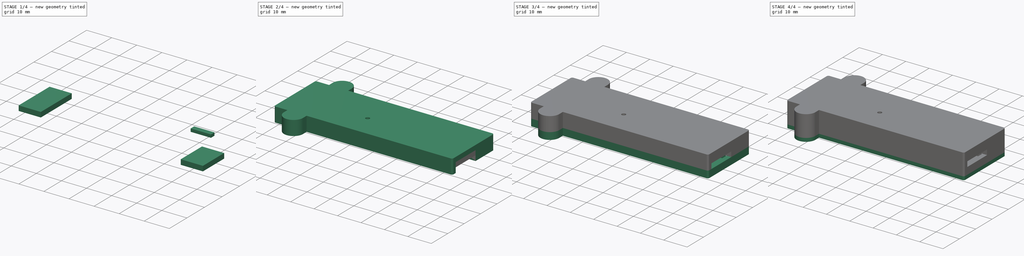
[diagram: build sequence overview — one tinted view per stage of 4, left to right]
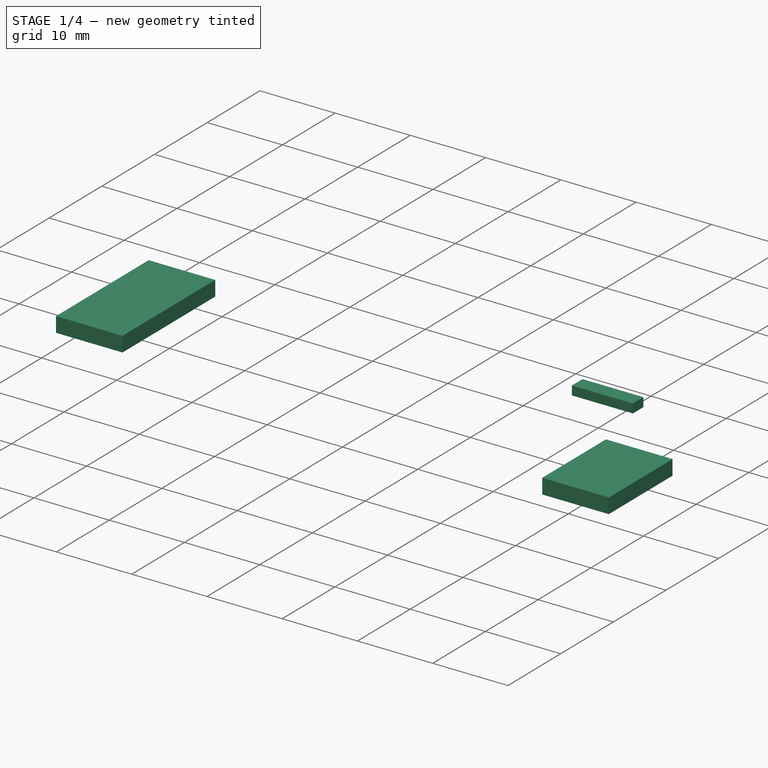
[diagram: stage 1 of 4 — iso view after this stage's code; geometry added in this stage tinted green]
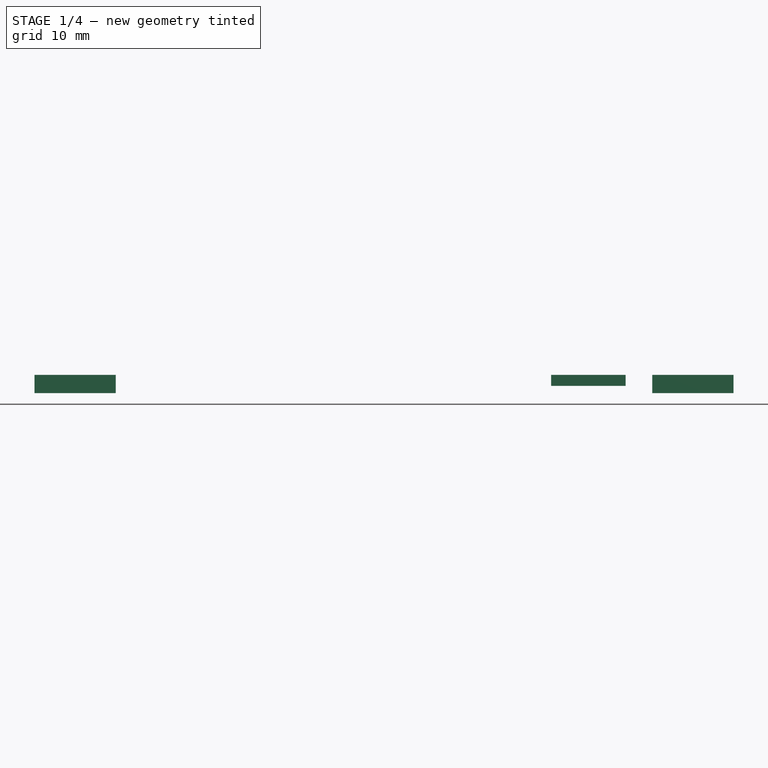
[diagram: stage 1 of 4 — front view after this stage's code; geometry added in this stage tinted green]
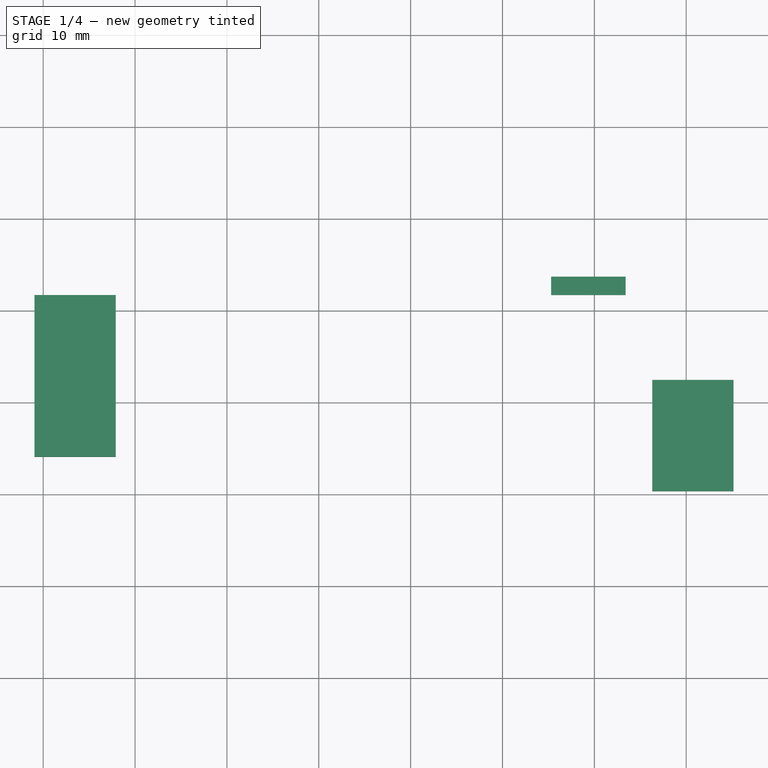
[diagram: stage 1 of 4 — top view after this stage's code; geometry added in this stage tinted green]
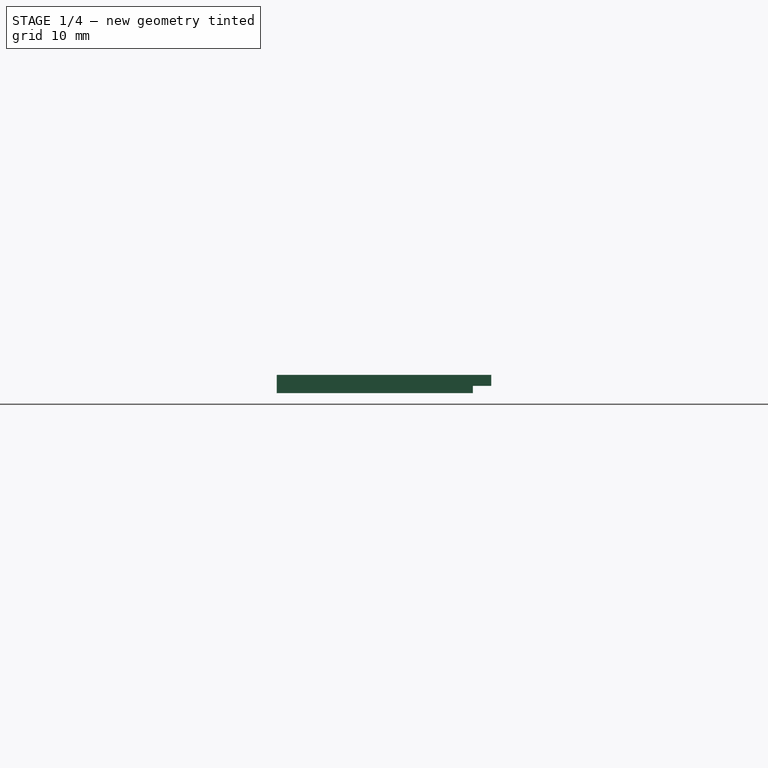
[diagram: stage 1 of 4 — right view after this stage's code; geometry added in this stage tinted green]
FCSTD DOCUMENT  (FreeCAD 0.20R29410 (Git))
Label: Servo_Controller_Enclosure
License: All rights reserved
LicenseURL: http://en.wikipedia.org/wiki/All_rights_reserved
objects: Sketcher::SketchObject×9, Part::Extrusion×7, Part::Compound×2
note: 18 computed .brp shape members not serialized (recipe doc carries the construction recipe); baked Part::Feature solids carry a one-line shape summary decoded from their .brp

FEATURE [Sketcher::SketchObject] Sketch009  label="L005"
  FullyConstrained = true
  Placement = pos=(-238.95,191.7,0) rot=(0,0,1;0rad)
  sketch-geometry (58):
    g0: LineSegment StartX=65.6 StartY=0 StartZ=0 EndX=0.75 EndY=0 EndZ=0
    g1: LineSegment StartX=0 StartY=-0.75 StartZ=0 EndX=0 EndY=-20.6 EndZ=0
    g2: LineSegment StartX=0.75 StartY=-21.35 StartZ=0 EndX=71.35 EndY=-21.35 EndZ=0
    g3: LineSegment StartX=72.1 StartY=-20.6 StartZ=0 EndX=72.1 EndY=-10 EndZ=0
    g4: LineSegment StartX=71.35 StartY=-9.25 StartZ=0 EndX=67.1 EndY=-9.25 EndZ=0
    g5: LineSegment StartX=66.35 StartY=-8.5 StartZ=0 EndX=66.35 EndY=-0.75 EndZ=0
    g6: ArcOfCircle CenterX=0.75 CenterY=-20.6 CenterZ=0 NormalX=0 NormalY=0 NormalZ=1 AngleXU=0 Radius=0.75 StartAngle=3.14159 EndAngle=4.71239
    g7: ArcOfCircle CenterX=0.75 CenterY=-0.75 CenterZ=0 NormalX=0 NormalY=0 NormalZ=1 AngleXU=0 Radius=0.75 StartAngle=1.5708 EndAngle=3.14159
    g8: ArcOfCircle CenterX=65.6 CenterY=-0.75 CenterZ=0 NormalX=0 NormalY=0 NormalZ=1 AngleXU=0 Radius=0.75 StartAngle=1e-16 EndAngle=1.5708
    g9: ArcOfCircle CenterX=67.1 CenterY=-8.5 CenterZ=0 NormalX=0 NormalY=0 NormalZ=1 AngleXU=0 Radius=0.75 StartAngle=3.14159 EndAngle=4.71239
    g10: ArcOfCircle CenterX=71.35 CenterY=-10 CenterZ=0 NormalX=0 NormalY=0 NormalZ=1 AngleXU=0 Radius=0.75 StartAngle=8e-16 EndAngle=1.5708
    g11: ArcOfCircle CenterX=71.35 CenterY=-20.6 CenterZ=0 NormalX=0 NormalY=0 NormalZ=1 AngleXU=0 Radius=0.75 StartAngle=4.71239 EndAngle=6.28319
    g12: LineSegment StartX=9 StartY=-21.35 StartZ=0 EndX=9 EndY=0 EndZ=0
    g13: LineSegment StartX=62.85 StartY=-21.35 StartZ=0 EndX=62.85 EndY=0 EndZ=0
    g14: LineSegment StartX=65.25 StartY=-21.35 StartZ=0 EndX=65.25 EndY=-9.25 EndZ=0
    g15: LineSegment StartX=67.1 StartY=-9.25 StartZ=0 EndX=65.25 EndY=-9.25 EndZ=0
    g16: LineSegment StartX=6.85 StartY=-17.6 StartZ=0 EndX=0 EndY=-17.6 EndZ=0
    g17: LineSegment StartX=6.85 StartY=-17.6 StartZ=0 EndX=6.85 EndY=0 EndZ=0
    g18: LineSegment StartX=54.25 StartY=2 StartZ=0 EndX=62.35 EndY=2 EndZ=0
    g19: LineSegment StartX=73.35 StartY=2 StartZ=0 EndX=-1.25 EndY=2 EndZ=0
    g20: LineSegment StartX=-2 StartY=1.25 StartZ=0 EndX=-2 EndY=-22.6 EndZ=0
    g21: LineSegment StartX=74.1 StartY=-22.6 StartZ=0 EndX=74.1 EndY=-9.25 EndZ=0
    g22: ArcOfCircle CenterX=-1.25 CenterY=-22.6 CenterZ=0 NormalX=0 NormalY=0 NormalZ=1 AngleXU=0 Radius=0.75 StartAngle=3.14159 EndAngle=4.71239
    g23: ArcOfCircle CenterX=-1.25 CenterY=1.25 CenterZ=0 NormalX=0 NormalY=0 NormalZ=1 AngleXU=0 Radius=0.75 StartAngle=1.5708 EndAngle=3.14159
    g24: ArcOfCircle CenterX=73.35 CenterY=1.25 CenterZ=0 NormalX=0 NormalY=0 NormalZ=1 AngleXU=0 Radius=0.75 StartAngle=1e-16 EndAngle=1.5708
    g25: ArcOfCircle CenterX=73.35 CenterY=-22.6 CenterZ=0 NormalX=0 NormalY=0 NormalZ=1 AngleXU=0 Radius=0.75 StartAngle=4.71239 EndAngle=6.28319
    g26: LineSegment StartX=62.35 StartY=2 StartZ=0 EndX=62.35 EndY=0 EndZ=0
    g27: LineSegment StartX=62.85 StartY=0 StartZ=0 EndX=62.35 EndY=0 EndZ=0
    g28: LineSegment StartX=73.35 StartY=2 StartZ=0 EndX=62.35 EndY=2 EndZ=0
    g29: LineSegment StartX=65.25 StartY=-9.25 StartZ=0 EndX=74.1 EndY=-9.25 EndZ=0
    g30: LineSegment StartX=74.1 StartY=-9.25 StartZ=0 EndX=74.1 EndY=1.25 EndZ=0
    g31: LineSegment StartX=65.25 StartY=-21.35 StartZ=0 EndX=74.1 EndY=-21.35 EndZ=0
    g32: LineSegment StartX=9 StartY=-21.35 StartZ=0 EndX=62.85 EndY=-21.35 EndZ=0
    g33: LineSegment StartX=54.25 StartY=2 StartZ=0 EndX=54.25 EndY=0 EndZ=0
    g34: LineSegment StartX=54.25 StartY=0 StartZ=0 EndX=9 EndY=0 EndZ=0
    g35: LineSegment StartX=6.85 StartY=-17.6 StartZ=0 EndX=-2 EndY=-17.6 EndZ=0
    g36: LineSegment StartX=-2 StartY=-17.6 StartZ=0 EndX=-2 EndY=-22.6 EndZ=0
    g37: LineSegment StartX=6.85 StartY=0 StartZ=0 EndX=-2 EndY=0 EndZ=0
    g38: LineSegment StartX=-2 StartY=1.25 StartZ=0 EndX=-2 EndY=0 EndZ=0
    g39: LineSegment StartX=74.1 StartY=-21.35 StartZ=0 EndX=74.1 EndY=-22.6 EndZ=0
    g40: Circle CenterX=70.2 CenterY=-3.8 CenterZ=0 NormalX=0 NormalY=0 NormalZ=1 AngleXU=0 Radius=1.1
    g41: LineSegment StartX=54.25 StartY=2 StartZ=0 EndX=11.9109 EndY=2 EndZ=0
    g42: LineSegment StartX=-1.25 StartY=2 StartZ=0 EndX=3.75 EndY=2 EndZ=0
    g43: Circle CenterX=7.83044 CenterY=4.1 CenterZ=0 NormalX=0 NormalY=0 NormalZ=1 AngleXU=0 Radius=1.1
    g44: ArcOfCircle CenterX=7.83044 CenterY=4.1 CenterZ=0 NormalX=0 NormalY=0 NormalZ=1 AngleXU=0 Radius=4.1 StartAngle=0.0977164 EndAngle=3.04388
    g45: LineSegment StartX=3.75 StartY=2 StartZ=0 EndX=3.75 EndY=4.5 EndZ=0
    g46: LineSegment StartX=11.9109 StartY=4.5 StartZ=0 EndX=11.9109 EndY=2 EndZ=0
    g47: LineSegment StartX=-1.25 StartY=-23.35 StartZ=0 EndX=3.75 EndY=-23.35 EndZ=0
    g48: LineSegment StartX=73.35 StartY=-23.35 StartZ=0 EndX=11.9109 EndY=-23.35 EndZ=0
    g49: LineSegment StartX=3.75 StartY=-23.35 StartZ=0 EndX=3.75 EndY=-25.85 EndZ=0
    g50: LineSegment StartX=11.9109 StartY=-23.35 StartZ=0 EndX=11.9109 EndY=-25.85 EndZ=0
    g51: Circle CenterX=7.83044 CenterY=-25.45 CenterZ=0 NormalX=0 NormalY=0 NormalZ=1 AngleXU=0 Radius=1.1
    g52: ArcOfCircle CenterX=7.83044 CenterY=-25.45 CenterZ=0 NormalX=0 NormalY=0 NormalZ=1 AngleXU=0 Radius=4.1 StartAngle=3.23931 EndAngle=6.18547
    g53: LineSegment StartX=11.9109 StartY=-23.35 StartZ=0 EndX=3.75 EndY=-23.35 EndZ=0
    g54: LineSegment StartX=-2 StartY=0 StartZ=0 EndX=-2 EndY=-17.6 EndZ=0
    g55: LineSegment StartX=62.35 StartY=2 StartZ=0 EndX=54.25 EndY=2 EndZ=0
    g56: LineSegment StartX=54.25 StartY=0 StartZ=0 EndX=62.35 EndY=0 EndZ=0
    g57: LineSegment StartX=74.1 StartY=-9.25 StartZ=0 EndX=74.1 EndY=-21.35 EndZ=0
  constraints (174):
    c: Horizontal(g0)
    c: Vertical(g1)
    c: Horizontal(g2)
    c: Vertical(g3)
    c: Horizontal(g4)
    c: Vertical(g5)
    c: Coincident(g6,g1)
    c: Coincident(g6,g2)
    c: Coincident(g7,g1)
    c: Coincident(g7,g0)
    c: Coincident(g8,g0)
    c: Coincident(g8,g5)
    c: Coincident(g9,g5)
    c: Coincident(g9,g4)
    c: Coincident(g10,g4)
    c: Coincident(g10,g3)
    c: Coincident(g11,g2)
    c: Coincident(g11,g3)
    c: Equal(g9,g10)
    c: Equal(g10,g8)
    c: Equal(g8,g11)
    c: Equal(g11,g6)
    c: Equal(g6,g7)
    c: Radius(g11) = 0.75
    c: Angle(g11) = 1.5708
    c: Angle(g10) = 1.5708
    c: Angle(g9) = 1.5708
    c: Angle(g8) = 1.5708
    c: Angle(g7) = 1.5708
    c: Angle(g6) = 1.5708
    c: Vertical(g2,g11)
    c: Vertical(g10,g4)
    c: Vertical(g9,g4)
    c: Vertical(g8,g0)
    c: Vertical(g0,g7)
    c: Vertical(g2,g6)
    c: DistanceY(g2,g0) = 21.35
    c: DistanceX(g5,g3) = 5.75
    c: DistanceY(g2,g4) = 12.1
    c: DistanceX(g1,g5) = 66.35
    c: PointOnObject(g12,g2)
    c: PointOnObject(g12,g0)
    c: Vertical(g12)
    c: PointOnObject(g13,g2)
    c: PointOnObject(g13,g0)
    c: Vertical(g13)
    c: PointOnObject(g14,g2)
    c: Vertical(g14)
    c: Coincident(g15,g4)
    c: Coincident(g15,g14)
    c: Horizontal(g15)
    c: PointOnObject(g16,g1)
    c: Horizontal(g16)
    c: Coincident(g17,g16)
    c: PointOnObject(g17,g0)
    c: Vertical(g17)
    c: DistanceY(g2,g16) = 3.75
    c: DistanceX(g16,g16) = 6.85
    c: DistanceX(g16,g12) = 2.15
    c: DistanceX(g14,g3) = 6.85
    c: DistanceX(g13,g14) = 2.4
    c: PointOnObject(g0,g-1)
    c: PointOnObject(g1,g-2)
    c: DistanceX(g18,g18) = 8.1
    c: DistanceX(g18,g5) = 4
    c: DistanceY(g13,g18) = 2
    c: Coincident(g22,g20)
    c: Coincident(g23,g20)
    c: Coincident(g23,g19)
    c: Coincident(g24,g19)
    c: Coincident(g25,g21)
    c: Equal(g24,g25)
    c: Equal(g25,g22)
    c: Equal(g22,g23)
    c: Radius(g25) = 0.75
    c: Angle(g25) = 1.5708
    c: Angle(g24) = 1.5708
    c: Angle(g23) = 1.5708
    c: Angle(g22) = 1.5708
    c: Vertical(g25,g25)
    c: Vertical(g24,g19)
    c: Vertical(g19,g23)
    c: Vertical(g22,g22)
    c: DistanceY(g22,g19) = 25.35
    c: DistanceY(g0,g19) = 2
    c: DistanceX(g20,g1) = 2
    c: Coincident(g26,g18)
    c: PointOnObject(g26,g0)
    c: Vertical(g26)
    c: Coincident(g27,g13)
    c: Coincident(g27,g26)
    c: Coincident(g28,g24)
    c: Coincident(g28,g26)
    c: Coincident(g29,g14)
    c: Horizontal(g29)
    c: Coincident(g30,g29)
    c: Vertical(g30)
    c: Coincident(g31,g14)
    c: PointOnObject(g31,g21)
    c: Horizontal(g31)
    c: Coincident(g32,g12)
    c: Coincident(g32,g13)
    c: Coincident(g33,g18)
    c: PointOnObject(g33,g0)
    c: Vertical(g33)
    c: Coincident(g34,g33)
    c: Coincident(g34,g12)
    c: Coincident(g35,g17)
    c: PointOnObject(g35,g20)
    c: Horizontal(g35)
    c: Coincident(g36,g35)
    c: Coincident(g36,g22)
    c: Vertical(g36)
    c: Coincident(g37,g17)
    c: Horizontal(g37)
    c: Coincident(g38,g23)
    c: Coincident(g38,g37)
    c: Vertical(g38)
    c: Coincident(g39,g31)
    c: Coincident(g39,g25)
    c: Coincident(g24,g30)
    c: DistanceX(g3,g31) = 2
    c: Diameter(g40) = 2.2
    c: DistanceY(g40,g24) = 5.8
    c: DistanceX(g40,g24) = 3.9
    c: Coincident(g41,g33)
    c: PointOnObject(g41,g19)
    c: Horizontal(g41)
    c: Coincident(g42,g23)
    c: PointOnObject(g42,g19)
    c: Coincident(g44,g43)
    c: Coincident(g45,g42)
    c: Coincident(g45,g44)
    c: Vertical(g45)
    c: Coincident(g46,g44)
    c: Coincident(g46,g41)
    c: Vertical(g46)
    c: Equal(g46,g45)
    c: Equal(g43,g40)
    c: Coincident(g47,g22)
    c: Coincident(g48,g25)
    c: Horizontal(g48)
    c: Coincident(g49,g47)
    c: Vertical(g49)
    c: Coincident(g50,g48)
    c: Vertical(g50)
    c: Coincident(g52,g51)
    c: Coincident(g52,g49)
    c: Coincident(g52,g50)
    c: Horizontal(g47)
    c: Equal(g42,g47)
    c: DistanceX(g47,g47) = 5
    c: Equal(g43,g51)
    c: Equal(g50,g49)
    c: Equal(g49,g45)
    c: Equal(g52,g44)
    c: DistanceY(g51,g48) = 2.1
    c: Diameter(g52) = 8.2
    c: Coincident(g53,g48)
    c: Coincident(g53,g47)
    c: Horizontal(g53)
    c: DistanceY(g50,g50) = 2.5
    c: DistanceY(g41,g43) = 2.1
    c: Coincident(g54,g37)
    c: Coincident(g54,g35)
    c: Coincident(g55,g26)
    c: Coincident(g55,g33)
    c: Coincident(g56,g33)
    c: Coincident(g56,g26)
    c: Horizontal(g19)
    c: Coincident(g21,g29)
    c: Vertical(g21)
    c: Coincident(g57,g29)
    c: Coincident(g57,g31)
FEATURE [Part::Extrusion] Extrude006
  Base = -> Sketch009
  Dir = (0,0,1)
  DirMode = 2
  FaceMakerClass = Part::FaceMakerBullseye
  LengthFwd = 2
  LengthRev = 0
  Placement = pos=(0,0,6.4) rot=(0,0,1;0rad)
  Solid = true
  Symmetric = false
FEATURE [Sketcher::SketchObject] Sketch010  label="L006"
  FullyConstrained = true
  Placement = pos=(-238.95,191.7,0) rot=(0,0,1;0rad)
  sketch-geometry (58):
    g0: LineSegment StartX=65.6 StartY=0 StartZ=0 EndX=0.75 EndY=0 EndZ=0
    g1: LineSegment StartX=0 StartY=-0.75 StartZ=0 EndX=0 EndY=-20.6 EndZ=0
    g2: LineSegment StartX=0.75 StartY=-21.35 StartZ=0 EndX=71.35 EndY=-21.35 EndZ=0
    g3: LineSegment StartX=72.1 StartY=-20.6 StartZ=0 EndX=72.1 EndY=-10 EndZ=0
    g4: LineSegment StartX=71.35 StartY=-9.25 StartZ=0 EndX=67.1 EndY=-9.25 EndZ=0
    g5: LineSegment StartX=66.35 StartY=-8.5 StartZ=0 EndX=66.35 EndY=-0.75 EndZ=0
    g6: ArcOfCircle CenterX=0.75 CenterY=-20.6 CenterZ=0 NormalX=0 NormalY=0 NormalZ=1 AngleXU=0 Radius=0.75 StartAngle=3.14159 EndAngle=4.71239
    g7: ArcOfCircle CenterX=0.75 CenterY=-0.75 CenterZ=0 NormalX=0 NormalY=0 NormalZ=1 AngleXU=0 Radius=0.75 StartAngle=1.5708 EndAngle=3.14159
    g8: ArcOfCircle CenterX=65.6 CenterY=-0.75 CenterZ=0 NormalX=0 NormalY=0 NormalZ=1 AngleXU=0 Radius=0.75 StartAngle=1e-16 EndAngle=1.5708
    g9: ArcOfCircle CenterX=67.1 CenterY=-8.5 CenterZ=0 NormalX=0 NormalY=0 NormalZ=1 AngleXU=0 Radius=0.75 StartAngle=3.14159 EndAngle=4.71239
    g10: ArcOfCircle CenterX=71.35 CenterY=-10 CenterZ=0 NormalX=0 NormalY=0 NormalZ=1 AngleXU=0 Radius=0.75 StartAngle=8e-16 EndAngle=1.5708
    g11: ArcOfCircle CenterX=71.35 CenterY=-20.6 CenterZ=0 NormalX=0 NormalY=0 NormalZ=1 AngleXU=0 Radius=0.75 StartAngle=4.71239 EndAngle=6.28319
    g12: LineSegment StartX=9 StartY=-21.35 StartZ=0 EndX=9 EndY=0 EndZ=0
    g13: LineSegment StartX=62.85 StartY=-21.35 StartZ=0 EndX=62.85 EndY=0 EndZ=0
    g14: LineSegment StartX=65.25 StartY=-21.35 StartZ=0 EndX=65.25 EndY=-9.25 EndZ=0
    g15: LineSegment StartX=67.1 StartY=-9.25 StartZ=0 EndX=65.25 EndY=-9.25 EndZ=0
    g16: LineSegment StartX=6.85 StartY=-17.6 StartZ=0 EndX=0 EndY=-17.6 EndZ=0
    g17: LineSegment StartX=6.85 StartY=-17.6 StartZ=0 EndX=6.85 EndY=0 EndZ=0
    g18: LineSegment StartX=54.25 StartY=2 StartZ=0 EndX=62.35 EndY=2 EndZ=0
    g19: LineSegment StartX=73.35 StartY=2 StartZ=0 EndX=-1.25 EndY=2 EndZ=0
    g20: LineSegment StartX=-2 StartY=1.25 StartZ=0 EndX=-2 EndY=-22.6 EndZ=0
    g21: LineSegment StartX=74.1 StartY=-22.6 StartZ=0 EndX=74.1 EndY=-9.25 EndZ=0
    g22: ArcOfCircle CenterX=-1.25 CenterY=-22.6 CenterZ=0 NormalX=0 NormalY=0 NormalZ=1 AngleXU=0 Radius=0.75 StartAngle=3.14159 EndAngle=4.71239
    g23: ArcOfCircle CenterX=-1.25 CenterY=1.25 CenterZ=0 NormalX=0 NormalY=0 NormalZ=1 AngleXU=0 Radius=0.75 StartAngle=1.5708 EndAngle=3.14159
    g24: ArcOfCircle CenterX=73.35 CenterY=1.25 CenterZ=0 NormalX=0 NormalY=0 NormalZ=1 AngleXU=0 Radius=0.75 StartAngle=1e-16 EndAngle=1.5708
    g25: ArcOfCircle CenterX=73.35 CenterY=-22.6 CenterZ=0 NormalX=0 NormalY=0 NormalZ=1 AngleXU=0 Radius=0.75 StartAngle=4.71239 EndAngle=6.28319
    g26: LineSegment StartX=62.35 StartY=2 StartZ=0 EndX=62.35 EndY=0 EndZ=0
    g27: LineSegment StartX=62.85 StartY=0 StartZ=0 EndX=62.35 EndY=0 EndZ=0
    g28: LineSegment StartX=73.35 StartY=2 StartZ=0 EndX=62.35 EndY=2 EndZ=0
    g29: LineSegment StartX=65.25 StartY=-9.25 StartZ=0 EndX=74.1 EndY=-9.25 EndZ=0
    g30: LineSegment StartX=74.1 StartY=-9.25 StartZ=0 EndX=74.1 EndY=1.25 EndZ=0
    g31: LineSegment StartX=65.25 StartY=-21.35 StartZ=0 EndX=74.1 EndY=-21.35 EndZ=0
    g32: LineSegment StartX=9 StartY=-21.35 StartZ=0 EndX=62.85 EndY=-21.35 EndZ=0
    g33: LineSegment StartX=54.25 StartY=2 StartZ=0 EndX=54.25 EndY=0 EndZ=0
    g34: LineSegment StartX=54.25 StartY=0 StartZ=0 EndX=9 EndY=0 EndZ=0
    g35: LineSegment StartX=6.85 StartY=-17.6 StartZ=0 EndX=-2 EndY=-17.6 EndZ=0
    g36: LineSegment StartX=-2 StartY=-17.6 StartZ=0 EndX=-2 EndY=-22.6 EndZ=0
    g37: LineSegment StartX=6.85 StartY=0 StartZ=0 EndX=-2 EndY=0 EndZ=0
    g38: LineSegment StartX=-2 StartY=1.25 StartZ=0 EndX=-2 EndY=0 EndZ=0
    g39: LineSegment StartX=74.1 StartY=-21.35 StartZ=0 EndX=74.1 EndY=-22.6 EndZ=0
    g40: Circle CenterX=70.2 CenterY=-3.8 CenterZ=0 NormalX=0 NormalY=0 NormalZ=1 AngleXU=0 Radius=1.1
    g41: LineSegment StartX=54.25 StartY=2 StartZ=0 EndX=11.9109 EndY=2 EndZ=0
    g42: LineSegment StartX=-1.25 StartY=2 StartZ=0 EndX=3.75 EndY=2 EndZ=0
    g43: Circle CenterX=7.83044 CenterY=4.1 CenterZ=0 NormalX=0 NormalY=0 NormalZ=1 AngleXU=0 Radius=1.1
    g44: ArcOfCircle CenterX=7.83044 CenterY=4.1 CenterZ=0 NormalX=0 NormalY=0 NormalZ=1 AngleXU=0 Radius=4.1 StartAngle=0.0977164 EndAngle=3.04388
    g45: LineSegment StartX=3.75 StartY=2 StartZ=0 EndX=3.75 EndY=4.5 EndZ=0
    g46: LineSegment StartX=11.9109 StartY=4.5 StartZ=0 EndX=11.9109 EndY=2 EndZ=0
    g47: LineSegment StartX=-1.25 StartY=-23.35 StartZ=0 EndX=3.75 EndY=-23.35 EndZ=0
    g48: LineSegment StartX=73.35 StartY=-23.35 StartZ=0 EndX=11.9109 EndY=-23.35 EndZ=0
    g49: LineSegment StartX=3.75 StartY=-23.35 StartZ=0 EndX=3.75 EndY=-25.85 EndZ=0
    g50: LineSegment StartX=11.9109 StartY=-23.35 StartZ=0 EndX=11.9109 EndY=-25.85 EndZ=0
    g51: Circle CenterX=7.83044 CenterY=-25.45 CenterZ=0 NormalX=0 NormalY=0 NormalZ=1 AngleXU=0 Radius=1.1
    g52: ArcOfCircle CenterX=7.83044 CenterY=-25.45 CenterZ=0 NormalX=0 NormalY=0 NormalZ=1 AngleXU=0 Radius=4.1 StartAngle=3.23931 EndAngle=6.18547
    g53: LineSegment StartX=11.9109 StartY=-23.35 StartZ=0 EndX=3.75 EndY=-23.35 EndZ=0
    g54: LineSegment StartX=-2 StartY=0 StartZ=0 EndX=-2 EndY=-17.6 EndZ=0
    g55: LineSegment StartX=62.35 StartY=2 StartZ=0 EndX=54.25 EndY=2 EndZ=0
    g56: LineSegment StartX=54.25 StartY=0 StartZ=0 EndX=62.35 EndY=0 EndZ=0
    g57: LineSegment StartX=74.1 StartY=-9.25 StartZ=0 EndX=74.1 EndY=-21.35 EndZ=0
  constraints (174):
    c: Horizontal(g0)
    c: Vertical(g1)
    c: Horizontal(g2)
    c: Vertical(g3)
    c: Horizontal(g4)
    c: Vertical(g5)
    c: Coincident(g6,g1)
    c: Coincident(g6,g2)
    c: Coincident(g7,g1)
    c: Coincident(g7,g0)
    c: Coincident(g8,g0)
    c: Coincident(g8,g5)
    c: Coincident(g9,g5)
    c: Coincident(g9,g4)
    c: Coincident(g10,g4)
    c: Coincident(g10,g3)
    c: Coincident(g11,g2)
    c: Coincident(g11,g3)
    c: Equal(g9,g10)
    c: Equal(g10,g8)
    c: Equal(g8,g11)
    c: Equal(g11,g6)
    c: Equal(g6,g7)
    c: Radius(g11) = 0.75
    c: Angle(g11) = 1.5708
    c: Angle(g10) = 1.5708
    c: Angle(g9) = 1.5708
    c: Angle(g8) = 1.5708
    c: Angle(g7) = 1.5708
    c: Angle(g6) = 1.5708
    c: Vertical(g2,g11)
    c: Vertical(g10,g4)
    c: Vertical(g9,g4)
    c: Vertical(g8,g0)
    c: Vertical(g0,g7)
    c: Vertical(g2,g6)
    c: DistanceY(g2,g0) = 21.35
    c: DistanceX(g5,g3) = 5.75
    c: DistanceY(g2,g4) = 12.1
    c: DistanceX(g1,g5) = 66.35
    c: PointOnObject(g12,g2)
    c: PointOnObject(g12,g0)
    c: Vertical(g12)
    c: PointOnObject(g13,g2)
    c: PointOnObject(g13,g0)
    c: Vertical(g13)
    c: PointOnObject(g14,g2)
    c: Vertical(g14)
    c: Coincident(g15,g4)
    c: Coincident(g15,g14)
    c: Horizontal(g15)
    c: PointOnObject(g16,g1)
    c: Horizontal(g16)
    c: Coincident(g17,g16)
    c: PointOnObject(g17,g0)
    c: Vertical(g17)
    c: DistanceY(g2,g16) = 3.75
    c: DistanceX(g16,g16) = 6.85
    c: DistanceX(g16,g12) = 2.15
    c: DistanceX(g14,g3) = 6.85
    c: DistanceX(g13,g14) = 2.4
    c: PointOnObject(g0,g-1)
    c: PointOnObject(g1,g-2)
    c: DistanceX(g18,g18) = 8.1
    c: DistanceX(g18,g5) = 4
    c: DistanceY(g13,g18) = 2
    c: Coincident(g22,g20)
    c: Coincident(g23,g20)
    c: Coincident(g23,g19)
    c: Coincident(g24,g19)
    c: Coincident(g25,g21)
    c: Equal(g24,g25)
    c: Equal(g25,g22)
    c: Equal(g22,g23)
    c: Radius(g25) = 0.75
    c: Angle(g25) = 1.5708
    c: Angle(g24) = 1.5708
    c: Angle(g23) = 1.5708
    c: Angle(g22) = 1.5708
    c: Vertical(g25,g25)
    c: Vertical(g24,g19)
    c: Vertical(g19,g23)
    c: Vertical(g22,g22)
    c: DistanceY(g22,g19) = 25.35
    c: DistanceY(g0,g19) = 2
    c: DistanceX(g20,g1) = 2
    c: Coincident(g26,g18)
    c: PointOnObject(g26,g0)
    c: Vertical(g26)
    c: Coincident(g27,g13)
    c: Coincident(g27,g26)
    c: Coincident(g28,g24)
    c: Coincident(g28,g26)
    c: Coincident(g29,g14)
    c: Horizontal(g29)
    c: Coincident(g30,g29)
    c: Vertical(g30)
    c: Coincident(g31,g14)
    c: PointOnObject(g31,g21)
    c: Horizontal(g31)
    c: Coincident(g32,g12)
    c: Coincident(g32,g13)
    c: Coincident(g33,g18)
    c: PointOnObject(g33,g0)
    c: Vertical(g33)
    c: Coincident(g34,g33)
    c: Coincident(g34,g12)
    c: Coincident(g35,g17)
    c: PointOnObject(g35,g20)
    c: Horizontal(g35)
    c: Coincident(g36,g35)
    c: Coincident(g36,g22)
    c: Vertical(g36)
    c: Coincident(g37,g17)
    c: Horizontal(g37)
    c: Coincident(g38,g23)
    c: Coincident(g38,g37)
    c: Vertical(g38)
    c: Coincident(g39,g31)
    c: Coincident(g39,g25)
    c: Coincident(g24,g30)
    c: DistanceX(g3,g31) = 2
    c: Diameter(g40) = 2.2
    c: DistanceY(g40,g24) = 5.8
    c: DistanceX(g40,g24) = 3.9
    c: Coincident(g41,g33)
    c: PointOnObject(g41,g19)
    c: Horizontal(g41)
    c: Coincident(g42,g23)
    c: PointOnObject(g42,g19)
    c: Coincident(g44,g43)
    c: Coincident(g45,g42)
    c: Coincident(g45,g44)
    c: Vertical(g45)
    c: Coincident(g46,g44)
    c: Coincident(g46,g41)
    c: Vertical(g46)
    c: Equal(g46,g45)
    c: Equal(g43,g40)
    c: Coincident(g47,g22)
    c: Coincident(g48,g25)
    c: Horizontal(g48)
    c: Coincident(g49,g47)
    c: Vertical(g49)
    c: Coincident(g50,g48)
    c: Vertical(g50)
    c: Coincident(g52,g51)
    c: Coincident(g52,g49)
    c: Coincident(g52,g50)
    c: Horizontal(g47)
    c: Equal(g42,g47)
    c: DistanceX(g47,g47) = 5
    c: Equal(g43,g51)
    c: Equal(g50,g49)
    c: Equal(g49,g45)
    c: Equal(g52,g44)
    c: DistanceY(g51,g48) = 2.1
    c: Diameter(g52) = 8.2
    c: Coincident(g53,g48)
    c: Coincident(g53,g47)
    c: Horizontal(g53)
    c: DistanceY(g50,g50) = 2.5
    c: DistanceY(g41,g43) = 2.1
    c: Coincident(g54,g37)
    c: Coincident(g54,g35)
    c: Coincident(g55,g26)
    c: Coincident(g55,g33)
    c: Coincident(g56,g33)
    c: Coincident(g56,g26)
    c: Horizontal(g19)
    c: Coincident(g21,g29)
    c: Vertical(g21)
    c: Coincident(g57,g29)
    c: Coincident(g57,g31)
FEATURE [Part::Extrusion] Extrude007
  Base = -> Sketch010
  Dir = (0,0,1)
  DirMode = 2
  FaceMakerClass = Part::FaceMakerBullseye
  LengthFwd = 1.2
  LengthRev = 0
  Placement = pos=(0,0,7.2) rot=(0,0,1;0rad)
  Solid = true
  Symmetric = false
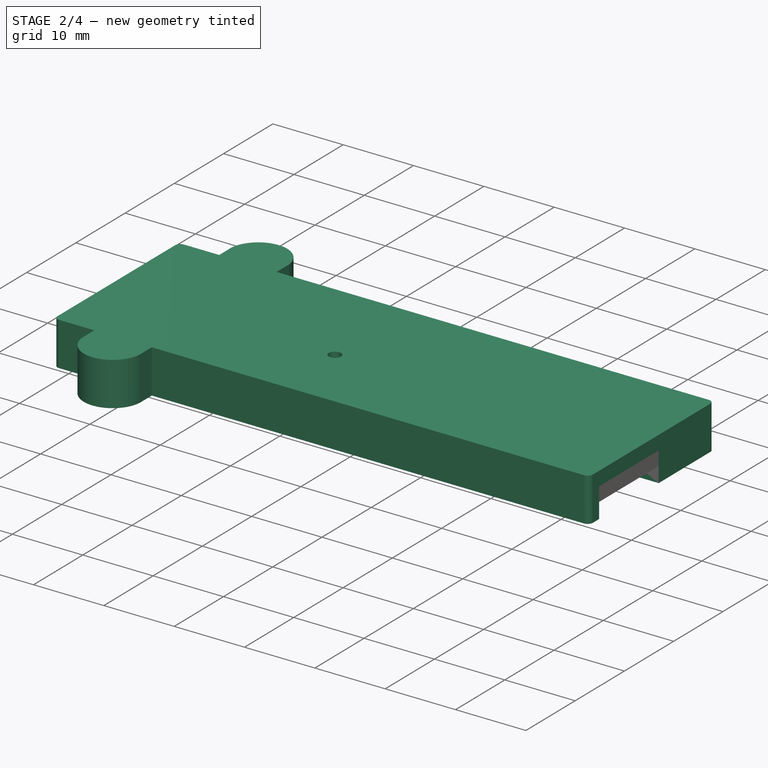
[diagram: stage 2 of 4 — iso view after this stage's code; geometry added in this stage tinted green]
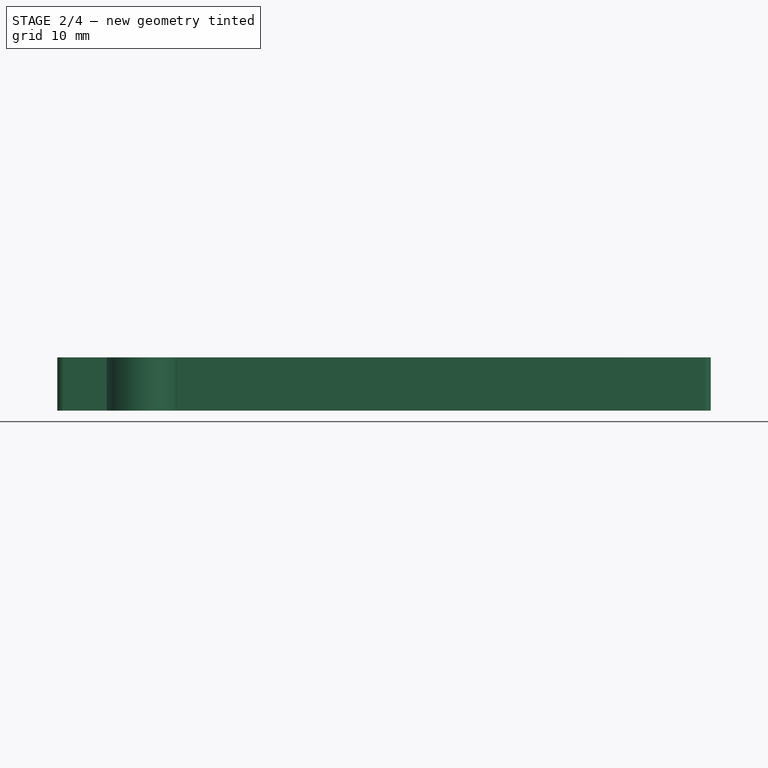
[diagram: stage 2 of 4 — front view after this stage's code; geometry added in this stage tinted green]
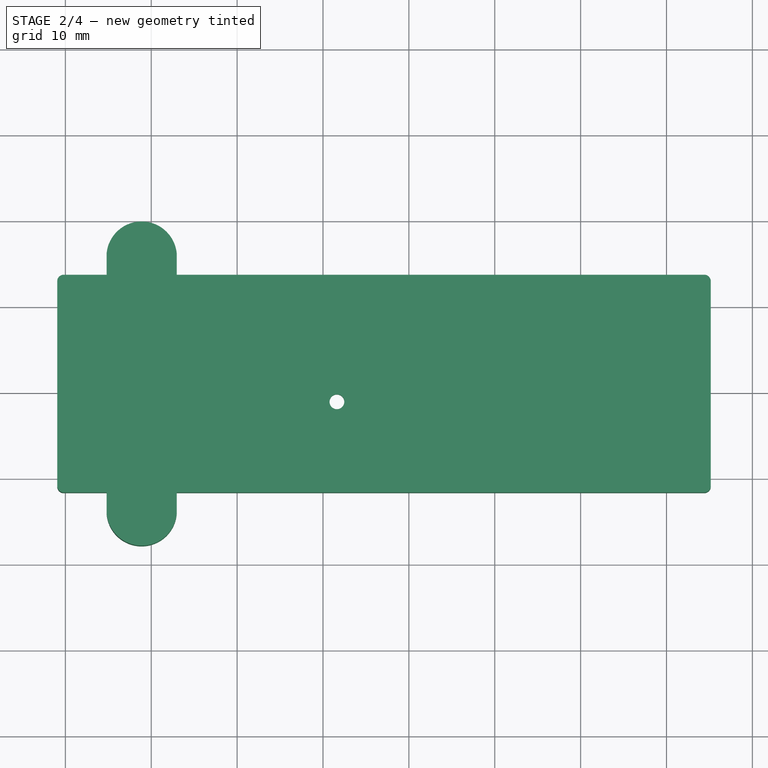
[diagram: stage 2 of 4 — top view after this stage's code; geometry added in this stage tinted green]
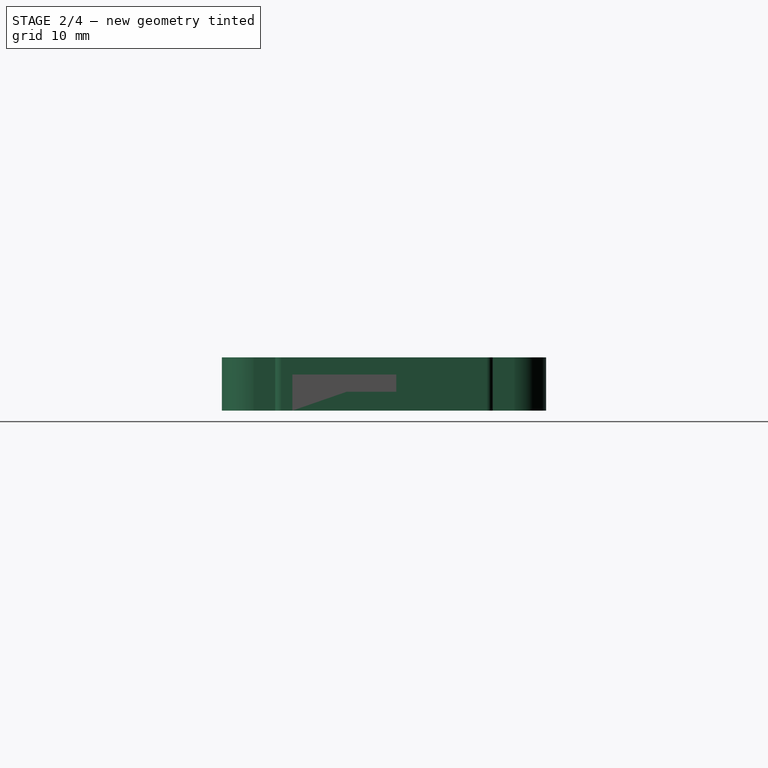
[diagram: stage 2 of 4 — right view after this stage's code; geometry added in this stage tinted green]
FEATURE [Sketcher::SketchObject] Sketch007  label="L003"
  FullyConstrained = false
  Placement = pos=(-238.95,191.7,0) rot=(0,0,1;0rad)
  sketch-geometry (54):
    g0: LineSegment StartX=65.6 StartY=0 StartZ=0 EndX=0.75 EndY=0 EndZ=0
    g1: LineSegment StartX=0 StartY=-0.75 StartZ=0 EndX=0 EndY=-20.6 EndZ=0
    g2: LineSegment StartX=0.75 StartY=-21.35 StartZ=0 EndX=71.35 EndY=-21.35 EndZ=0
    g3: LineSegment StartX=72.1 StartY=-20.6 StartZ=0 EndX=72.1 EndY=-10 EndZ=0
    g4: LineSegment StartX=71.35 StartY=-9.25 StartZ=0 EndX=67.1 EndY=-9.25 EndZ=0
    g5: LineSegment StartX=66.35 StartY=-8.5 StartZ=0 EndX=66.35 EndY=-0.75 EndZ=0
    g6: ArcOfCircle CenterX=0.75 CenterY=-20.6 CenterZ=0 NormalX=0 NormalY=0 NormalZ=1 AngleXU=0 Radius=0.75 StartAngle=3.14159 EndAngle=4.71239
    g7: ArcOfCircle CenterX=0.75 CenterY=-0.75 CenterZ=0 NormalX=0 NormalY=0 NormalZ=1 AngleXU=0 Radius=0.75 StartAngle=1.5708 EndAngle=3.14159
    g8: ArcOfCircle CenterX=65.6 CenterY=-0.75 CenterZ=0 NormalX=0 NormalY=0 NormalZ=1 AngleXU=0 Radius=0.75 StartAngle=1e-16 EndAngle=1.5708
    g9: ArcOfCircle CenterX=67.1 CenterY=-8.5 CenterZ=0 NormalX=0 NormalY=0 NormalZ=1 AngleXU=0 Radius=0.75 StartAngle=3.14159 EndAngle=4.71239
    g10: ArcOfCircle CenterX=71.35 CenterY=-10 CenterZ=0 NormalX=0 NormalY=0 NormalZ=1 AngleXU=0 Radius=0.75 StartAngle=2e-16 EndAngle=1.5708
    g11: ArcOfCircle CenterX=71.35 CenterY=-20.6 CenterZ=0 NormalX=0 NormalY=0 NormalZ=1 AngleXU=0 Radius=0.75 StartAngle=4.71239 EndAngle=6.28319
    g12: LineSegment StartX=9 StartY=-21.35 StartZ=0 EndX=9 EndY=0 EndZ=0
    g13: LineSegment StartX=62.85 StartY=-21.35 StartZ=0 EndX=62.85 EndY=0 EndZ=0
    g14: LineSegment StartX=65.25 StartY=-21.35 StartZ=0 EndX=65.25 EndY=-9.25 EndZ=0
    g15: LineSegment StartX=67.1 StartY=-9.25 StartZ=0 EndX=65.25 EndY=-9.25 EndZ=0
    g16: LineSegment StartX=6.85 StartY=-17.6 StartZ=0 EndX=0 EndY=-17.6 EndZ=0
    g17: LineSegment StartX=6.85 StartY=-17.6 StartZ=0 EndX=6.85 EndY=0 EndZ=0
    g18: LineSegment StartX=54.25 StartY=2 StartZ=0 EndX=62.35 EndY=2 EndZ=0
    g19: LineSegment StartX=73.35 StartY=2 StartZ=0 EndX=-1.25 EndY=2 EndZ=0
    g20: LineSegment StartX=-2 StartY=1.25 StartZ=0 EndX=-2 EndY=-22.6 EndZ=0
    g21: LineSegment StartX=74.1 StartY=-22.6 StartZ=0 EndX=74.1 EndY=-8.0123 EndZ=0
    g22: ArcOfCircle CenterX=-1.25 CenterY=-22.6 CenterZ=0 NormalX=0 NormalY=0 NormalZ=1 AngleXU=0 Radius=0.75 StartAngle=3.14159 EndAngle=4.71239
    g23: ArcOfCircle CenterX=-1.25 CenterY=1.25 CenterZ=0 NormalX=0 NormalY=0 NormalZ=1 AngleXU=0 Radius=0.75 StartAngle=1.5708 EndAngle=3.14159
    g24: ArcOfCircle CenterX=73.35 CenterY=1.25 CenterZ=0 NormalX=0 NormalY=0 NormalZ=1 AngleXU=0 Radius=0.75 StartAngle=1e-16 EndAngle=1.5708
    g25: ArcOfCircle CenterX=73.35 CenterY=-22.6 CenterZ=0 NormalX=0 NormalY=0 NormalZ=1 AngleXU=0 Radius=0.75 StartAngle=4.71239 EndAngle=6.28319
    g26: LineSegment StartX=62.35 StartY=2 StartZ=0 EndX=62.35 EndY=0 EndZ=0
    g27: LineSegment StartX=62.85 StartY=0 StartZ=0 EndX=62.35 EndY=0 EndZ=0
    g28: LineSegment StartX=73.35 StartY=2 StartZ=0 EndX=62.35 EndY=2 EndZ=0
    g29: LineSegment StartX=65.25 StartY=-9.25 StartZ=0 EndX=74.1 EndY=-9.25 EndZ=0
    g30: LineSegment StartX=74.1 StartY=-9.25 StartZ=0 EndX=74.1 EndY=1.25 EndZ=0
    g31: LineSegment StartX=65.25 StartY=-21.35 StartZ=0 EndX=74.1 EndY=-21.35 EndZ=0
    g32: LineSegment StartX=9 StartY=-21.35 StartZ=0 EndX=62.85 EndY=-21.35 EndZ=0
    g33: LineSegment StartX=54.25 StartY=2 StartZ=0 EndX=54.25 EndY=0 EndZ=0
    g34: LineSegment StartX=54.25 StartY=0 StartZ=0 EndX=9 EndY=0 EndZ=0
    g35: LineSegment StartX=6.85 StartY=-17.6 StartZ=0 EndX=-2 EndY=-17.6 EndZ=0
    g36: LineSegment StartX=-2 StartY=-17.6 StartZ=0 EndX=-2 EndY=-22.6 EndZ=0
    g37: LineSegment StartX=6.85 StartY=0 StartZ=0 EndX=-2 EndY=0 EndZ=0
    g38: LineSegment StartX=-2 StartY=1.25 StartZ=0 EndX=-2 EndY=0 EndZ=0
    g39: LineSegment StartX=74.1 StartY=-21.35 StartZ=0 EndX=74.1 EndY=-22.6 EndZ=0
    g40: Circle CenterX=70.2 CenterY=-3.8 CenterZ=0 NormalX=0 NormalY=0 NormalZ=1 AngleXU=0 Radius=1.65
    g41: LineSegment StartX=54.25 StartY=2 StartZ=0 EndX=11.9109 EndY=2 EndZ=0
    g42: LineSegment StartX=-1.25 StartY=2 StartZ=0 EndX=3.75 EndY=2 EndZ=0
    g43: Circle CenterX=7.83044 CenterY=4.1 CenterZ=0 NormalX=0 NormalY=0 NormalZ=1 AngleXU=0 Radius=1.65
    g44: ArcOfCircle CenterX=7.83044 CenterY=4.1 CenterZ=0 NormalX=0 NormalY=0 NormalZ=1 AngleXU=0 Radius=4.1 StartAngle=0.0977164 EndAngle=3.04388
    g45: LineSegment StartX=3.75 StartY=2 StartZ=0 EndX=3.75 EndY=4.5 EndZ=0
    g46: LineSegment StartX=11.9109 StartY=4.5 StartZ=0 EndX=11.9109 EndY=2 EndZ=0
    g47: LineSegment StartX=-1.25 StartY=-23.35 StartZ=0 EndX=3.75 EndY=-23.35 EndZ=0
    g48: LineSegment StartX=73.35 StartY=-23.35 StartZ=0 EndX=11.9109 EndY=-23.35 EndZ=0
    g49: LineSegment StartX=3.75 StartY=-23.35 StartZ=0 EndX=3.75 EndY=-25.85 EndZ=0
    g50: LineSegment StartX=11.9109 StartY=-23.35 StartZ=0 EndX=11.9109 EndY=-25.85 EndZ=0
    g51: Circle CenterX=7.83044 CenterY=-25.45 CenterZ=0 NormalX=0 NormalY=0 NormalZ=1 AngleXU=0 Radius=1.65
    g52: ArcOfCircle CenterX=7.83044 CenterY=-25.45 CenterZ=0 NormalX=0 NormalY=0 NormalZ=1 AngleXU=0 Radius=4.1 StartAngle=3.23931 EndAngle=6.18547
    g53: LineSegment StartX=11.9109 StartY=-23.35 StartZ=0 EndX=3.75 EndY=-23.35 EndZ=0
  constraints (166):
    c: Horizontal(g0)
    c: Vertical(g1)
    c: Horizontal(g2)
    c: Vertical(g3)
    c: Horizontal(g4)
    c: Vertical(g5)
    c: Coincident(g6,g1)
    c: Coincident(g6,g2)
    c: Coincident(g7,g1)
    c: Coincident(g7,g0)
    c: Coincident(g8,g0)
    c: Coincident(g8,g5)
    c: Coincident(g9,g5)
    c: Coincident(g9,g4)
    c: Coincident(g10,g4)
    c: Coincident(g10,g3)
    c: Coincident(g11,g2)
    c: Coincident(g11,g3)
    c: Equal(g9,g10)
    c: Equal(g10,g8)
    c: Equal(g8,g11)
    c: Equal(g11,g6)
    c: Equal(g6,g7)
    c: Radius(g11) = 0.75
    c: Angle(g11) = 1.5708
    c: Angle(g10) = 1.5708
    c: Angle(g9) = 1.5708
    c: Angle(g8) = 1.5708
    c: Angle(g7) = 1.5708
    c: Angle(g6) = 1.5708
    c: Vertical(g2,g11)
    c: Vertical(g10,g4)
    c: Vertical(g9,g4)
    c: Vertical(g8,g0)
    c: Vertical(g0,g7)
    c: Vertical(g2,g6)
    c: DistanceY(g2,g0) = 21.35
    c: DistanceX(g5,g3) = 5.75
    c: DistanceY(g2,g4) = 12.1
    c: DistanceX(g1,g5) = 66.35
    c: PointOnObject(g12,g2)
    c: PointOnObject(g12,g0)
    c: Vertical(g12)
    c: PointOnObject(g13,g2)
    c: PointOnObject(g13,g0)
    c: Vertical(g13)
    c: PointOnObject(g14,g2)
    c: Vertical(g14)
    c: Coincident(g15,g4)
    c: Coincident(g15,g14)
    c: Horizontal(g15)
    c: PointOnObject(g16,g1)
    c: Horizontal(g16)
    c: Coincident(g17,g16)
    c: PointOnObject(g17,g0)
    c: Vertical(g17)
    c: DistanceY(g2,g16) = 3.75
    c: DistanceX(g16,g16) = 6.85
    c: DistanceX(g16,g12) = 2.15
    c: DistanceX(g14,g3) = 6.85
    c: DistanceX(g13,g14) = 2.4
    c: PointOnObject(g0,g-1)
    c: PointOnObject(g1,g-2)
    c: Horizontal(g18)
    c: DistanceX(g18,g18) = 8.1
    c: DistanceX(g18,g5) = 4
    c: DistanceY(g13,g18) = 2
    c: Coincident(g22,g20)
    c: Coincident(g23,g20)
    c: Coincident(g23,g19)
    c: Coincident(g24,g19)
    c: Coincident(g25,g21)
    c: Equal(g24,g25)
    c: Equal(g25,g22)
    c: Equal(g22,g23)
    c: Radius(g25) = 0.75
    c: Angle(g25) = 1.5708
    c: Angle(g24) = 1.5708
    c: Angle(g23) = 1.5708
    c: Angle(g22) = 1.5708
    c: Vertical(g25,g25)
    c: Vertical(g24,g19)
    c: Vertical(g19,g23)
    c: Vertical(g22,g22)
    c: DistanceY(g22,g19) = 25.35
    c: DistanceY(g0,g19) = 2
    c: DistanceX(g20,g1) = 2
    c: Coincident(g26,g18)
    c: PointOnObject(g26,g0)
    c: Vertical(g26)
    c: Coincident(g27,g13)
    c: Coincident(g27,g26)
    c: Coincident(g28,g24)
    c: Coincident(g28,g26)
    c: Coincident(g29,g14)
    c: PointOnObject(g29,g21)
    c: Horizontal(g29)
    c: Coincident(g30,g29)
    c: Vertical(g30)
    c: Coincident(g31,g14)
    c: PointOnObject(g31,g21)
    c: Horizontal(g31)
    c: Coincident(g32,g12)
    c: Coincident(g32,g13)
    c: Coincident(g33,g18)
    c: PointOnObject(g33,g0)
    c: Vertical(g33)
    c: Coincident(g34,g33)
    c: Coincident(g34,g12)
    c: Coincident(g35,g17)
    c: PointOnObject(g35,g20)
    c: Horizontal(g35)
    c: Coincident(g36,g35)
    c: Coincident(g36,g22)
    c: Vertical(g36)
    c: Coincident(g37,g17)
    c: Horizontal(g37)
    c: Coincident(g38,g23)
    c: Coincident(g38,g37)
    c: Vertical(g38)
    c: Coincident(g39,g31)
    c: Coincident(g39,g25)
    c: Coincident(g24,g30)
    c: Vertical(g21)
    c: DistanceX(g3,g31) = 2
    c: Diameter(g40) = 3.3
    c: DistanceY(g40,g24) = 5.8
    c: DistanceX(g40,g24) = 3.9
    c: Coincident(g41,g33)
    c: PointOnObject(g41,g19)
    c: Horizontal(g41)
    c: Coincident(g42,g23)
    c: PointOnObject(g42,g19)
    c: Coincident(g44,g43)
    c: Coincident(g45,g42)
    c: Coincident(g45,g44)
    c: Vertical(g45)
    c: Coincident(g46,g44)
    c: Coincident(g46,g41)
    c: Vertical(g46)
    c: Equal(g46,g45)
    c: Equal(g43,g40)
    c: Coincident(g47,g22)
    c: Coincident(g48,g25)
    c: Horizontal(g48)
    c: Coincident(g49,g47)
    c: Vertical(g49)
    c: Coincident(g50,g48)
    c: Vertical(g50)
    c: Coincident(g52,g51)
    c: Coincident(g52,g49)
    c: Coincident(g52,g50)
    c: Horizontal(g47)
    c: Equal(g42,g47)
    c: DistanceX(g47,g47) = 5
    c: Equal(g43,g51)
    c: Equal(g50,g49)
    c: Equal(g49,g45)
    c: Equal(g52,g44)
    c: DistanceY(g51,g48) = 2.1
    c: Diameter(g52) = 8.2
    c: Coincident(g53,g48)
    c: Coincident(g53,g47)
    c: Horizontal(g53)
    c: DistanceY(g50,g50) = 2.5
    c: DistanceY(g41,g43) = 2.1
FEATURE [Part::Extrusion] Extrude003
  Base = -> Sketch007
  Dir = (0,0,1)
  DirMode = 2
  FaceMakerClass = Part::FaceMakerBullseye
  LengthFwd = 4.2
  LengthRev = 0
  Placement = pos=(0,0,4.2) rot=(0,0,1;0rad)
  Solid = true
  Symmetric = false
FEATURE [Sketcher::SketchObject] Sketch008  label="L004"
  FullyConstrained = true
  Placement = pos=(-238.95,191.7,0) rot=(0,0,1;0rad)
  sketch-geometry (39):
    g0: LineSegment StartX=65.6 StartY=0 StartZ=0 EndX=0.75 EndY=0 EndZ=0
    g1: LineSegment StartX=0 StartY=-0.75 StartZ=0 EndX=0 EndY=-20.6 EndZ=0
    g2: LineSegment StartX=0.75 StartY=-21.35 StartZ=0 EndX=71.35 EndY=-21.35 EndZ=0
    g3: LineSegment StartX=72.1 StartY=-20.6 StartZ=0 EndX=72.1 EndY=-10 EndZ=0
    g4: LineSegment StartX=71.35 StartY=-9.25 StartZ=0 EndX=67.1 EndY=-9.25 EndZ=0
    g5: LineSegment StartX=66.35 StartY=-8.5 StartZ=0 EndX=66.35 EndY=-0.75 EndZ=0
    g6: ArcOfCircle CenterX=0.75 CenterY=-20.6 CenterZ=0 NormalX=0 NormalY=0 NormalZ=1 AngleXU=0 Radius=0.75 StartAngle=3.14159 EndAngle=4.71239
    g7: ArcOfCircle CenterX=0.75 CenterY=-0.75 CenterZ=0 NormalX=0 NormalY=0 NormalZ=1 AngleXU=0 Radius=0.75 StartAngle=1.5708 EndAngle=3.14159
    g8: ArcOfCircle CenterX=65.6 CenterY=-0.75 CenterZ=0 NormalX=0 NormalY=0 NormalZ=1 AngleXU=0 Radius=0.75 StartAngle=1e-16 EndAngle=1.5708
    g9: ArcOfCircle CenterX=67.1 CenterY=-8.5 CenterZ=0 NormalX=0 NormalY=0 NormalZ=1 AngleXU=0 Radius=0.75 StartAngle=3.14159 EndAngle=4.71239
    g10: ArcOfCircle CenterX=71.35 CenterY=-10 CenterZ=0 NormalX=0 NormalY=0 NormalZ=1 AngleXU=0 Radius=0.75 StartAngle=-9e-16 EndAngle=1.5708
    g11: ArcOfCircle CenterX=71.35 CenterY=-20.6 CenterZ=0 NormalX=0 NormalY=0 NormalZ=1 AngleXU=0 Radius=0.75 StartAngle=4.71239 EndAngle=6.28319
    g12: LineSegment StartX=9 StartY=-21.35 StartZ=0 EndX=9 EndY=0 EndZ=0
    g13: LineSegment StartX=62.85 StartY=-21.35 StartZ=0 EndX=62.85 EndY=0 EndZ=0
    g14: LineSegment StartX=65.25 StartY=-21.35 StartZ=0 EndX=65.25 EndY=-9.25 EndZ=0
    g15: LineSegment StartX=67.1 StartY=-9.25 StartZ=0 EndX=65.25 EndY=-9.25 EndZ=0
    g16: LineSegment StartX=6.85 StartY=-17.6 StartZ=0 EndX=0 EndY=-17.6 EndZ=0
    g17: LineSegment StartX=6.85 StartY=-17.6 StartZ=0 EndX=6.85 EndY=0 EndZ=0
    g18: LineSegment StartX=54.25 StartY=2 StartZ=0 EndX=62.35 EndY=2 EndZ=0
    g19: LineSegment StartX=73.35 StartY=2 StartZ=0 EndX=-1.25 EndY=2 EndZ=0
    g20: LineSegment StartX=-2 StartY=1.25 StartZ=0 EndX=-2 EndY=-22.6 EndZ=0
    g21: LineSegment StartX=-1.25 StartY=-23.35 StartZ=0 EndX=73.35 EndY=-23.35 EndZ=0
    g22: LineSegment StartX=74.1 StartY=-22.6 StartZ=0 EndX=74.1 EndY=1.25 EndZ=0
    g23: ArcOfCircle CenterX=-1.25 CenterY=-22.6 CenterZ=0 NormalX=0 NormalY=0 NormalZ=1 AngleXU=0 Radius=0.75 StartAngle=3.14159 EndAngle=4.71239
    g24: ArcOfCircle CenterX=-1.25 CenterY=1.25 CenterZ=0 NormalX=0 NormalY=0 NormalZ=1 AngleXU=0 Radius=0.75 StartAngle=1.5708 EndAngle=3.14159
    g25: ArcOfCircle CenterX=73.35 CenterY=1.25 CenterZ=0 NormalX=0 NormalY=0 NormalZ=1 AngleXU=0 Radius=0.75 StartAngle=0 EndAngle=1.5708
    g26: ArcOfCircle CenterX=73.35 CenterY=-22.6 CenterZ=0 NormalX=0 NormalY=0 NormalZ=1 AngleXU=0 Radius=0.75 StartAngle=4.71239 EndAngle=6.28319
    g27: Circle CenterX=30.565 CenterY=-12.8 CenterZ=0 NormalX=0 NormalY=0 NormalZ=1 AngleXU=0 Radius=0.86
    g28: Circle CenterX=70.2 CenterY=-3.8 CenterZ=0 NormalX=0 NormalY=0 NormalZ=1 AngleXU=0 Radius=1.1
    g29: LineSegment StartX=-1.25 StartY=2 StartZ=0 EndX=3.75 EndY=2 EndZ=0
    g30: LineSegment StartX=11.9109 StartY=2 StartZ=0 EndX=73.35 EndY=2 EndZ=0
    g31: LineSegment StartX=3.75 StartY=2 StartZ=0 EndX=3.75 EndY=4.5 EndZ=0
    g32: LineSegment StartX=11.9109 StartY=2 StartZ=0 EndX=11.9109 EndY=4.5 EndZ=0
    g33: ArcOfCircle CenterX=7.83044 CenterY=4.1 CenterZ=0 NormalX=0 NormalY=0 NormalZ=1 AngleXU=0 Radius=4.1 StartAngle=0.0977164 EndAngle=3.04388
    g34: LineSegment StartX=-1.25 StartY=-23.35 StartZ=0 EndX=3.75 EndY=-23.35 EndZ=0
    g35: LineSegment StartX=11.9109 StartY=-23.35 StartZ=0 EndX=73.35 EndY=-23.35 EndZ=0
    g36: LineSegment StartX=3.75 StartY=-23.35 StartZ=0 EndX=3.75 EndY=-25.85 EndZ=0
    g37: LineSegment StartX=11.9109 StartY=-23.35 StartZ=0 EndX=11.9109 EndY=-25.85 EndZ=0
    g38: ArcOfCircle CenterX=7.83044 CenterY=-25.45 CenterZ=0 NormalX=0 NormalY=0 NormalZ=1 AngleXU=0 Radius=4.1 StartAngle=3.23931 EndAngle=6.18547
  constraints (131):
    c: Horizontal(g0)
    c: Vertical(g1)
    c: Horizontal(g2)
    c: Vertical(g3)
    c: Horizontal(g4)
    c: Vertical(g5)
    c: Coincident(g6,g1)
    c: Coincident(g6,g2)
    c: Coincident(g7,g1)
    c: Coincident(g7,g0)
    c: Coincident(g8,g0)
    c: Coincident(g8,g5)
    c: Coincident(g9,g5)
    c: Coincident(g9,g4)
    c: Coincident(g10,g4)
    c: Coincident(g10,g3)
    c: Coincident(g11,g2)
    c: Coincident(g11,g3)
    c: Equal(g9,g10)
    c: Equal(g10,g8)
    c: Equal(g8,g11)
    c: Equal(g11,g6)
    c: Equal(g6,g7)
    c: Radius(g11) = 0.75
    c: Angle(g11) = 1.5708
    c: Angle(g10) = 1.5708
    c: Angle(g9) = 1.5708
    c: Angle(g8) = 1.5708
    c: Angle(g7) = 1.5708
    c: Angle(g6) = 1.5708
    c: Vertical(g2,g11)
    c: Vertical(g10,g4)
    c: Vertical(g9,g4)
    c: Vertical(g8,g0)
    c: Vertical(g0,g7)
    c: Vertical(g2,g6)
    c: DistanceY(g2,g0) = 21.35
    c: DistanceX(g5,g3) = 5.75
    c: DistanceY(g2,g4) = 12.1
    c: DistanceX(g1,g5) = 66.35
    c: PointOnObject(g12,g2)
    c: PointOnObject(g12,g0)
    c: Vertical(g12)
    c: PointOnObject(g13,g2)
    c: PointOnObject(g13,g0)
    c: Vertical(g13)
    c: PointOnObject(g14,g2)
    c: Vertical(g14)
    c: Coincident(g15,g4)
    c: Coincident(g15,g14)
    c: Horizontal(g15)
    c: PointOnObject(g16,g1)
    c: Horizontal(g16)
    c: Coincident(g17,g16)
    c: PointOnObject(g17,g0)
    c: Vertical(g17)
    c: DistanceY(g2,g16) = 3.75
    c: DistanceX(g16,g16) = 6.85
    c: DistanceX(g16,g12) = 2.15
    c: DistanceX(g14,g3) = 6.85
    c: DistanceX(g13,g14) = 2.4
    c: PointOnObject(g0,g-1)
    c: PointOnObject(g1,g-2)
    c: Horizontal(g18)
    c: DistanceX(g18,g18) = 8.1
    c: DistanceX(g18,g5) = 4
    c: DistanceY(g13,g18) = 2
    c: Horizontal(g19)
    c: Vertical(g20)
    c: Horizontal(g21)
    c: Vertical(g22)
    c: Coincident(g23,g20)
    c: Coincident(g23,g21)
    c: Coincident(g24,g20)
    c: Coincident(g24,g19)
    c: Coincident(g25,g19)
    c: Coincident(g26,g21)
    c: Coincident(g26,g22)
    c: Equal(g25,g26)
    c: Equal(g26,g23)
    c: Equal(g23,g24)
    c: Radius(g26) = 0.75
    c: Angle(g26) = 1.5708
    c: Angle(g25) = 1.5708
    c: Angle(g24) = 1.5708
    c: Angle(g23) = 1.5708
    c: Vertical(g21,g26)
    c: Vertical(g25,g19)
    c: Vertical(g19,g24)
    c: Vertical(g21,g23)
    c: DistanceY(g21,g19) = 25.35
    c: DistanceY(g0,g19) = 2
    c: DistanceX(g20,g1) = 2
    c: DistanceX(g-1,g27) = 30.565
    c: DistanceY(g27,g-1) = 12.8
    c: Diameter(g27) = 1.72
    c: Coincident(g22,g25)
    c: DistanceX(g3,g22) = 2
    c: Diameter(g28) = 2.2
    c: DistanceY(g28,g19) = 5.8
    c: DistanceX(g28,g22) = 3.9
    c: PointOnObject(g29,g19)
    c: PointOnObject(g30,g19)
    c: Coincident(g30,g25)
    c: Coincident(g31,g29)
    c: Vertical(g31)
    c: Coincident(g32,g30)
    c: Vertical(g32)
    c: Coincident(g33,g31)
    c: Coincident(g33,g32)
    c: Coincident(g34,g23)
    c: Coincident(g35,g26)
    c: PointOnObject(g35,g21)
    c: PointOnObject(g34,g21)
    c: Coincident(g36,g34)
    c: Vertical(g36)
    c: Coincident(g37,g35)
    c: Vertical(g37)
    c: Coincident(g38,g36)
    c: Coincident(g38,g37)
    c: Equal(g36,g37)
    c: Equal(g37,g32)
    c: Equal(g32,g31)
    c: Equal(g34,g29)
    c: Equal(g33,g38)
    c: DistanceX(g34,g34) = 5
    c: Coincident(g29,g24)
    c: DistanceY(g31,g31) = 2.5
    c: DistanceY(g38,g35) = 2.1
    c: Diameter(g33) = 8.2
    c: DistanceY(g30,g33) = 2.1
FEATURE [Part::Extrusion] Extrude005
  Base = -> Sketch008
  Dir = (0,0,1)
  DirMode = 2
  FaceMakerClass = Part::FaceMakerBullseye
  LengthFwd = 2
  LengthRev = 0
  Placement = pos=(0,0,8.4) rot=(0,0,1;0rad)
  Solid = true
  Symmetric = false
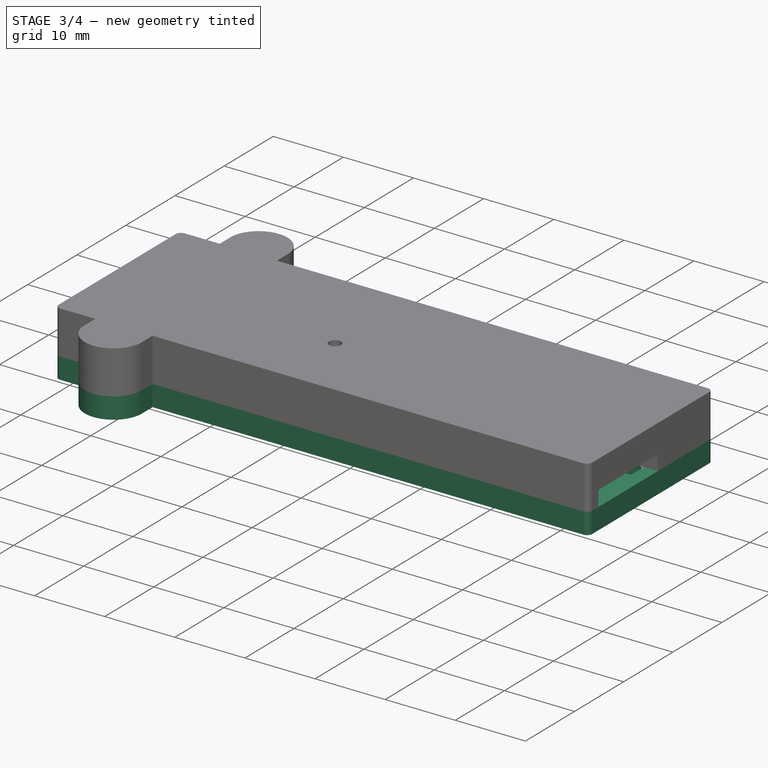
[diagram: stage 3 of 4 — iso view after this stage's code; geometry added in this stage tinted green]
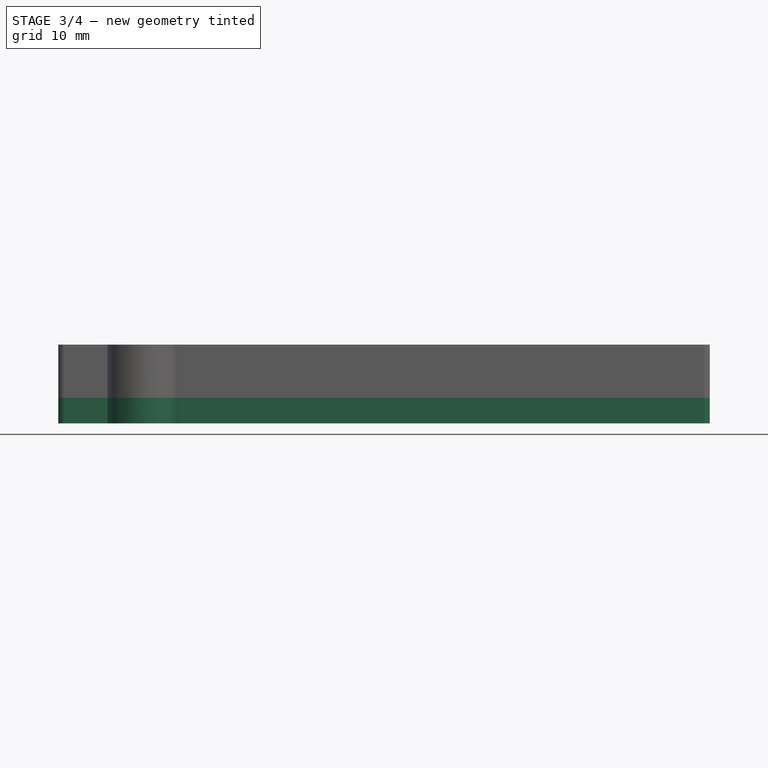
[diagram: stage 3 of 4 — front view after this stage's code; geometry added in this stage tinted green]
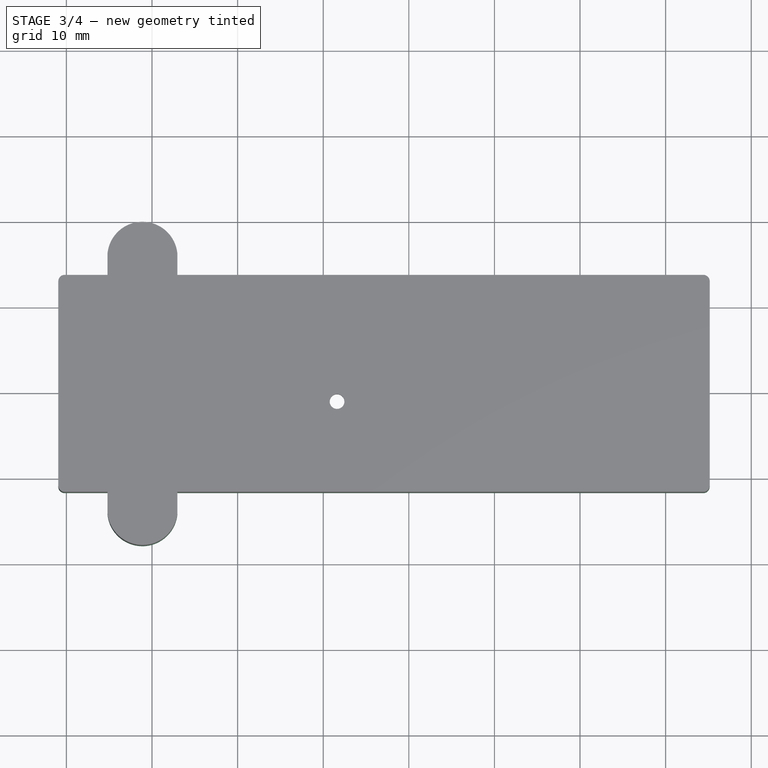
[diagram: stage 3 of 4 — top view after this stage's code; geometry added in this stage tinted green]
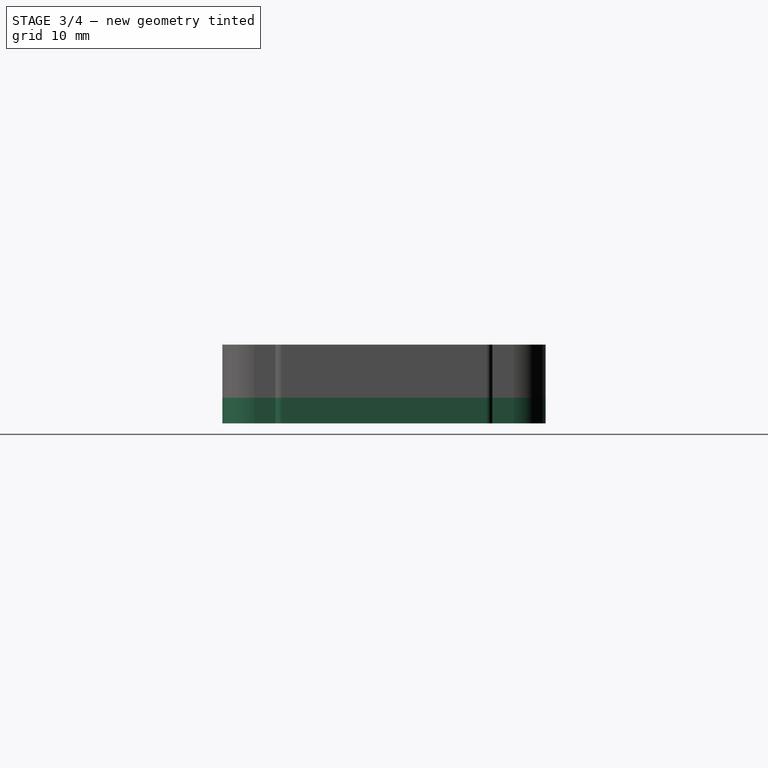
[diagram: stage 3 of 4 — right view after this stage's code; geometry added in this stage tinted green]
FEATURE [Part::Extrusion] Extrude001
  Base = -> Sketch004
  Dir = (0,0,1)
  DirMode = 2
  FaceMakerClass = Part::FaceMakerBullseye
  LengthFwd = 3
  LengthRev = 0
  Placement = pos=(0,0,1.2) rot=(0,0,1;0rad)
  Solid = true
  Symmetric = false
FEATURE [Sketcher::SketchObject] Sketch006  label="L3"
  FullyConstrained = false
  Placement = pos=(-238.95,191.7,0) rot=(0,0,1;0rad)
  sketch-geometry (29):
    g0: LineSegment StartX=65.6 StartY=0 StartZ=0 EndX=0.75 EndY=0 EndZ=0
    g1: LineSegment StartX=0 StartY=-0.75 StartZ=0 EndX=0 EndY=-20.6 EndZ=0
    g2: LineSegment StartX=0.75 StartY=-21.35 StartZ=0 EndX=71.35 EndY=-21.3481 EndZ=0
    g3: LineSegment StartX=72.1 StartY=-20.5981 StartZ=0 EndX=72.1 EndY=-9.99806 EndZ=0
    g4: LineSegment StartX=71.35 StartY=-9.24806 StartZ=0 EndX=67.1 EndY=-9.24806 EndZ=0
    g5: LineSegment StartX=66.35 StartY=-8.49806 StartZ=0 EndX=66.35 EndY=-0.75 EndZ=0
    g6: ArcOfCircle CenterX=0.75 CenterY=-20.6 CenterZ=0 NormalX=0 NormalY=0 NormalZ=1 AngleXU=0 Radius=0.75 StartAngle=3.14159 EndAngle=4.71239
    g7: ArcOfCircle CenterX=0.75 CenterY=-0.75 CenterZ=0 NormalX=0 NormalY=0 NormalZ=1 AngleXU=0 Radius=0.75 StartAngle=1.5708 EndAngle=3.14159
    g8: ArcOfCircle CenterX=65.6 CenterY=-0.75 CenterZ=0 NormalX=0 NormalY=0 NormalZ=1 AngleXU=0 Radius=0.75 StartAngle=1e-16 EndAngle=1.5708
    g9: ArcOfCircle CenterX=67.1 CenterY=-8.49806 CenterZ=0 NormalX=0 NormalY=0 NormalZ=1 AngleXU=0 Radius=0.75 StartAngle=3.14159 EndAngle=4.71239
    g10: ArcOfCircle CenterX=71.35 CenterY=-9.99806 CenterZ=0 NormalX=0 NormalY=0 NormalZ=1 AngleXU=0 Radius=0.75 StartAngle=-9e-16 EndAngle=1.5708
    g11: ArcOfCircle CenterX=71.35 CenterY=-20.5981 CenterZ=0 NormalX=0 NormalY=0 NormalZ=1 AngleXU=0 Radius=0.75 StartAngle=4.71239 EndAngle=6.28319
    g12: LineSegment StartX=9 StartY=-21.3498 StartZ=0 EndX=9 EndY=0 EndZ=0
    g13: LineSegment StartX=62.85 StartY=-21.3483 StartZ=0 EndX=62.85 EndY=0 EndZ=0
    g14: LineSegment StartX=65.25 StartY=-21.3482 StartZ=0 EndX=65.25 EndY=-9.24806 EndZ=0
    g15: LineSegment StartX=67.1 StartY=-9.24806 StartZ=0 EndX=65.25 EndY=-9.24806 EndZ=0
    g16: LineSegment StartX=6.85 StartY=-17.6 StartZ=0 EndX=0 EndY=-17.6 EndZ=0
    g17: LineSegment StartX=6.85 StartY=-17.6 StartZ=0 EndX=6.85 EndY=0 EndZ=0
    g18: LineSegment StartX=54.25 StartY=2 StartZ=0 EndX=62.35 EndY=2 EndZ=0
    g19: LineSegment StartX=0.75 StartY=0 StartZ=0 EndX=9 EndY=0 EndZ=0
    g20: LineSegment StartX=9 StartY=0 StartZ=0 EndX=9 EndY=-21.3498 EndZ=0
    g21: LineSegment StartX=9 StartY=-21.3498 StartZ=0 EndX=0.75 EndY=-21.35 EndZ=0
    g22: LineSegment StartX=71.35 StartY=-21.3481 StartZ=0 EndX=62.85 EndY=-21.3483 EndZ=0
    g23: LineSegment StartX=62.85 StartY=-21.3483 StartZ=0 EndX=62.85 EndY=0 EndZ=0
    g24: LineSegment StartX=62.85 StartY=0 StartZ=0 EndX=65.6 EndY=0 EndZ=0
    g25: LineSegment StartX=24 StartY=-21.3494 StartZ=0 EndX=49 EndY=-21.3494 EndZ=0
    g26: LineSegment StartX=49 StartY=-21.3494 StartZ=0 EndX=45.4645 EndY=-17.8138 EndZ=0
    g27: LineSegment StartX=45.4645 StartY=-17.8138 StartZ=0 EndX=27.5355 EndY=-17.8138 EndZ=0
    g28: LineSegment StartX=27.5355 StartY=-17.8138 StartZ=0 EndX=24 EndY=-21.3494 EndZ=0
  constraints (92):
    c: Horizontal(g0)
    c: Vertical(g1)
    c: Vertical(g3)
    c: Horizontal(g4)
    c: Vertical(g5)
    c: Coincident(g6,g1)
    c: Coincident(g6,g2)
    c: Coincident(g7,g1)
    c: Coincident(g7,g0)
    c: Coincident(g8,g0)
    c: Coincident(g8,g5)
    c: Coincident(g9,g5)
    c: Coincident(g9,g4)
    c: Coincident(g10,g4)
    c: Coincident(g10,g3)
    c: Coincident(g11,g2)
    c: Coincident(g11,g3)
    c: Equal(g9,g10)
    c: Equal(g10,g8)
    c: Equal(g8,g11)
    c: Equal(g11,g6)
    c: Equal(g6,g7)
    c: Radius(g11) = 0.75
    c: Angle(g11) = 1.5708
    c: Angle(g10) = 1.5708
    c: Angle(g9) = 1.5708
    c: Angle(g8) = 1.5708
    c: Angle(g7) = 1.5708
    c: Angle(g6) = 1.5708
    c: Vertical(g2,g11)
    c: Vertical(g10,g4)
    c: Vertical(g9,g4)
    c: Vertical(g8,g0)
    c: Vertical(g0,g7)
    c: Vertical(g2,g6)
    c: DistanceY(g2,g0) = 21.35
    c: DistanceX(g5,g3) = 5.75
    c: DistanceY(g2,g4) = 12.1
    c: DistanceX(g1,g5) = 66.35
    c: PointOnObject(g12,g2)
    c: PointOnObject(g12,g0)
    c: Vertical(g12)
    c: PointOnObject(g13,g2)
    c: PointOnObject(g13,g0)
    c: Vertical(g13)
    c: PointOnObject(g14,g2)
    c: Vertical(g14)
    c: Coincident(g15,g4)
    c: Coincident(g15,g14)
    c: Horizontal(g15)
    c: PointOnObject(g16,g1)
    c: Horizontal(g16)
    c: Coincident(g17,g16)
    c: PointOnObject(g17,g0)
    c: Vertical(g17)
    c: DistanceY(g2,g16) = 3.75
    c: DistanceX(g16,g16) = 6.85
    c: DistanceX(g16,g12) = 2.15
    c: DistanceX(g14,g3) = 6.85
    c: DistanceX(g13,g14) = 2.4
    c: PointOnObject(g0,g-1)
    c: PointOnObject(g1,g-2)
    c: Horizontal(g18)
    c: DistanceX(g18,g18) = 8.1
    c: DistanceX(g18,g5) = 4
    c: DistanceY(g13,g18) = 2
    c: Coincident(g19,g7)
    c: Coincident(g19,g12)
    c: Coincident(g20,g19)
    c: Coincident(g20,g12)
    c: Coincident(g21,g20)
    c: Coincident(g21,g6)
    c: Coincident(g22,g11)
    c: Coincident(g22,g13)
    c: Coincident(g23,g22)
    c: Coincident(g23,g13)
    c: Coincident(g24,g23)
    c: Coincident(g24,g8)
    c: Horizontal(g24)
    c: Tangent(g24,g8)
    c: Coincident(g25,g26)
    c: Coincident(g26,g27)
    c: Coincident(g27,g28)
    c: Coincident(g28,g25)
    c: Horizontal(g25)
    c: PointOnObject(g25,g2)
    c: Horizontal(g27)
    c: Equal(g28,g26)
    c: Angle(g28,g25,g25) = 2.35619
    c: Distance(g28) = 5
    c: DistanceX(g25,g25) = 25
    c: DistanceX(g20,g25) = 15
FEATURE [Part::Extrusion] Extrude002
  Base = -> Sketch006
  Dir = (0,0,1)
  DirMode = 2
  FaceMakerClass = Part::FaceMakerBullseye
  LengthFwd = 1.5
  LengthRev = 0
  Placement = pos=(0,0,1.2) rot=(0,0,1;0rad)
  Solid = true
  Symmetric = false
FEATURE [Part::Compound] Compound  label="Cover"
  Links = -> [Extrude005,Extrude003,Extrude006,Extrude007]
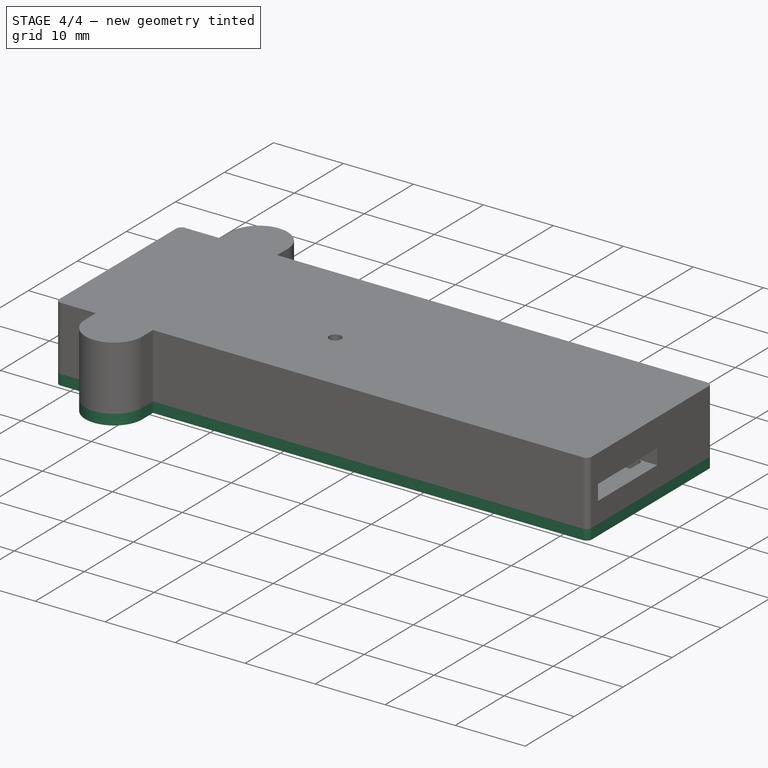
[diagram: stage 4 of 4 — iso view after this stage's code; geometry added in this stage tinted green]
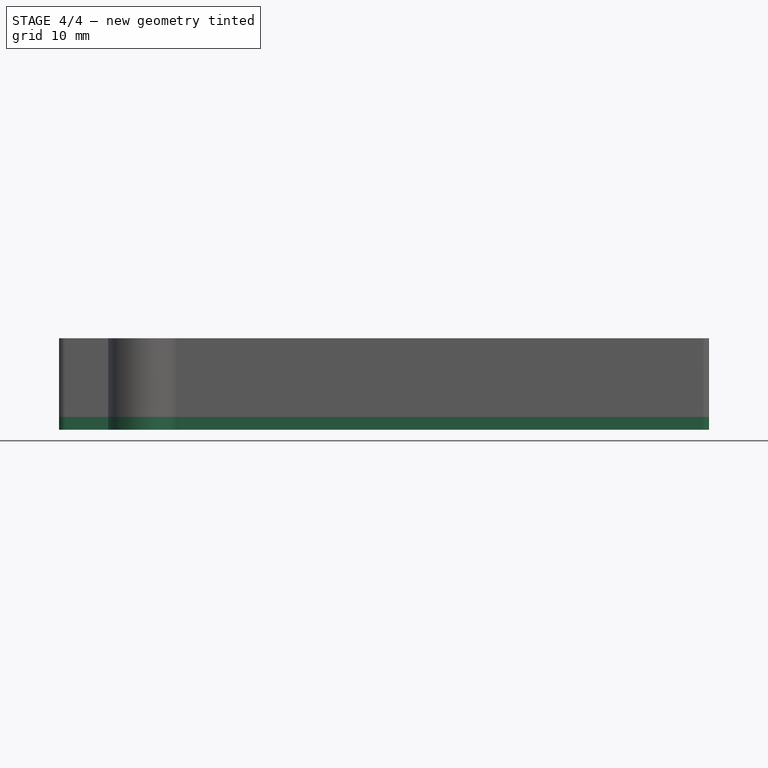
[diagram: stage 4 of 4 — front view after this stage's code; geometry added in this stage tinted green]
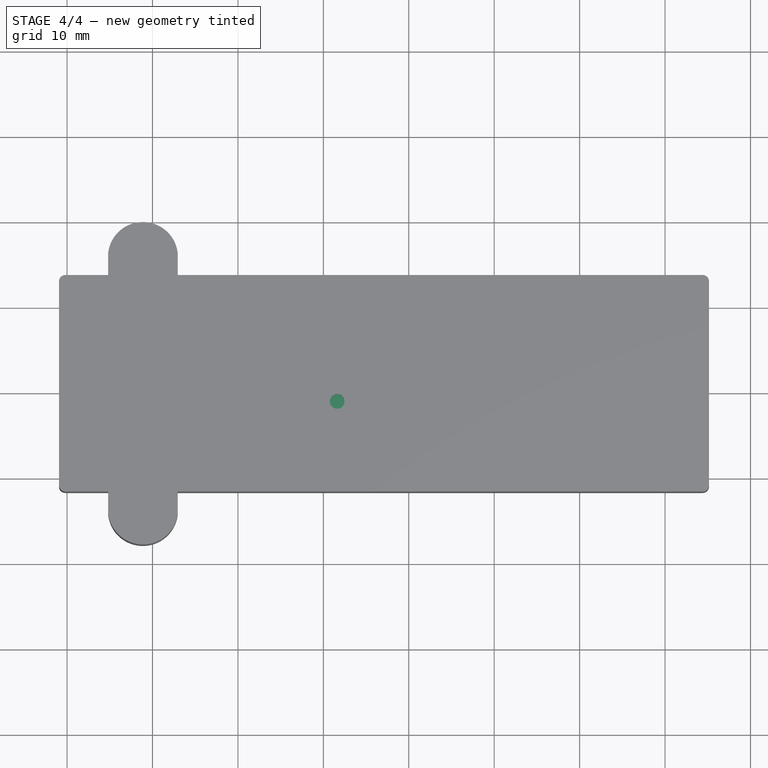
[diagram: stage 4 of 4 — top view after this stage's code; geometry added in this stage tinted green]
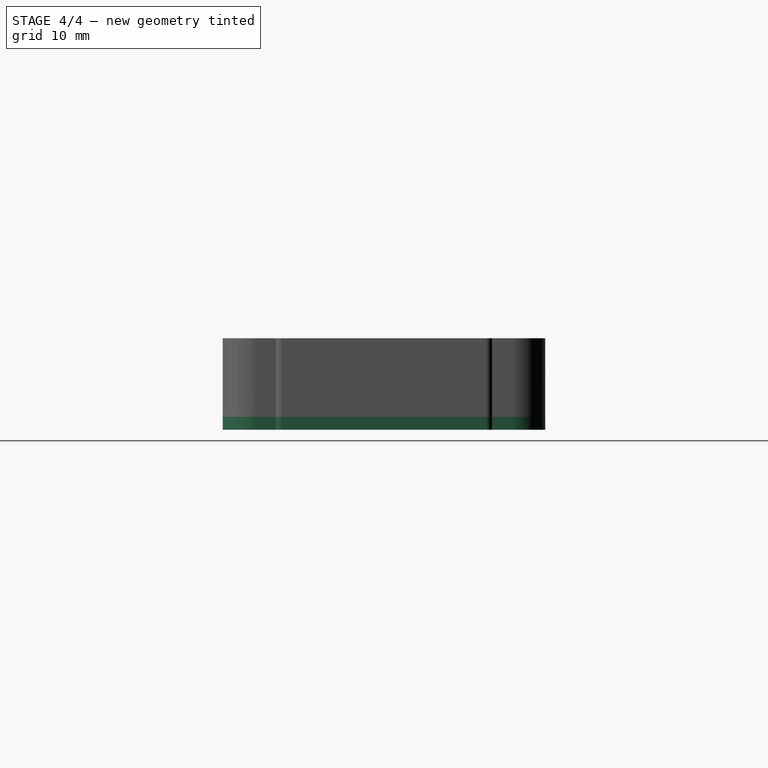
[diagram: stage 4 of 4 — right view after this stage's code; geometry added in this stage tinted green]
FEATURE [Sketcher::SketchObject] Sketch002  label="Dimensions"
  FullyConstrained = false
  Placement = pos=(-238.95,191.7,0) rot=(0,0,1;0rad)
  sketch-geometry (168):
    g0: LineSegment StartX=306.786 StartY=-200.965 StartZ=0 EndX=306.799 EndY=-201 EndZ=0
    g1: LineSegment StartX=306.799 StartY=-201 StartZ=0 EndX=306.786 EndY=-201.035 EndZ=0
    g2: LineSegment StartX=306.786 StartY=-201.035 StartZ=0 EndX=306.751 EndY=-201.05 EndZ=0
    g3: LineSegment StartX=306.751 StartY=-201.05 StartZ=0 EndX=304.051 EndY=-201.05 EndZ=0
    g4: LineSegment StartX=304.051 StartY=-201.05 StartZ=0 EndX=304.051 EndY=-212.5 EndZ=0
    g5: LineSegment StartX=304.051 StartY=-212.5 StartZ=0 EndX=304.035 EndY=-212.535 EndZ=0
    g6: LineSegment StartX=304.035 StartY=-212.535 StartZ=0 EndX=304 EndY=-212.55 EndZ=0
    g7: LineSegment StartX=304 StartY=-212.55 StartZ=0 EndX=303.964 EndY=-212.535 EndZ=0
    g8: LineSegment StartX=303.964 StartY=-212.535 StartZ=0 EndX=303.949 EndY=-212.5 EndZ=0
    g9: LineSegment StartX=303.949 StartY=-212.5 StartZ=0 EndX=303.949 EndY=-201 EndZ=0
    g10: LineSegment StartX=303.949 StartY=-201 StartZ=0 EndX=303.964 EndY=-200.965 EndZ=0
    g11: LineSegment StartX=303.964 StartY=-200.965 StartZ=0 EndX=304 EndY=-200.95 EndZ=0
    g12: LineSegment StartX=304 StartY=-200.95 StartZ=0 EndX=306.751 EndY=-200.95 EndZ=0
    g13: LineSegment StartX=306.751 StartY=-200.95 StartZ=0 EndX=306.786 EndY=-200.965 EndZ=0
    g14: LineSegment StartX=247.785 StartY=-191.715 StartZ=0 EndX=247.8 EndY=-191.75 EndZ=0
    g15: LineSegment StartX=247.8 StartY=-191.75 StartZ=0 EndX=247.8 EndY=-212.5 EndZ=0
    g16: LineSegment StartX=247.8 StartY=-212.5 StartZ=0 EndX=247.785 EndY=-212.535 EndZ=0
    g17: LineSegment StartX=247.785 StartY=-212.535 StartZ=0 EndX=247.75 EndY=-212.55 EndZ=0
    g18: LineSegment StartX=247.75 StartY=-212.55 StartZ=0 EndX=247.715 EndY=-212.535 EndZ=0
    g19: LineSegment StartX=247.715 StartY=-212.535 StartZ=0 EndX=247.7 EndY=-212.5 EndZ=0
    g20: LineSegment StartX=247.7 StartY=-212.5 StartZ=0 EndX=247.7 EndY=-191.75 EndZ=0
    g21: LineSegment StartX=247.7 StartY=-191.75 StartZ=0 EndX=247.715 EndY=-191.715 EndZ=0
    g22: LineSegment StartX=247.715 StartY=-191.715 StartZ=0 EndX=247.75 EndY=-191.7 EndZ=0
    g23: LineSegment StartX=247.75 StartY=-191.7 StartZ=0 EndX=247.785 EndY=-191.715 EndZ=0
    g24: LineSegment StartX=301.536 StartY=-191.715 StartZ=0 EndX=301.549 EndY=-191.75 EndZ=0
    g25: LineSegment StartX=301.549 StartY=-191.75 StartZ=0 EndX=301.549 EndY=-212.5 EndZ=0
    g26: LineSegment StartX=301.549 StartY=-212.5 StartZ=0 EndX=301.536 EndY=-212.535 EndZ=0
    g27: LineSegment StartX=301.536 StartY=-212.535 StartZ=0 EndX=301.501 EndY=-212.55 EndZ=0
    g28: LineSegment StartX=301.501 StartY=-212.55 StartZ=0 EndX=301.465 EndY=-212.535 EndZ=0
    g29: LineSegment StartX=301.465 StartY=-212.535 StartZ=0 EndX=301.45 EndY=-212.5 EndZ=0
    g30: LineSegment StartX=301.45 StartY=-212.5 StartZ=0 EndX=301.45 EndY=-191.75 EndZ=0
    g31: LineSegment StartX=301.45 StartY=-191.75 StartZ=0 EndX=301.465 EndY=-191.715 EndZ=0
    g32: LineSegment StartX=301.465 StartY=-191.715 StartZ=0 EndX=301.501 EndY=-191.7 EndZ=0
    g33: LineSegment StartX=301.501 StartY=-191.7 StartZ=0 EndX=301.536 EndY=-191.715 EndZ=0
    g34: LineSegment StartX=238.965 StartY=-209.035 StartZ=0 EndX=238.95 EndY=-209 EndZ=0
    g35: LineSegment StartX=238.95 StartY=-209 StartZ=0 EndX=238.965 EndY=-208.965 EndZ=0
    g36: LineSegment StartX=238.965 StartY=-208.965 StartZ=0 EndX=239 EndY=-208.95 EndZ=0
    g37: LineSegment StartX=239 StartY=-208.95 StartZ=0 EndX=245.45 EndY=-208.95 EndZ=0
    g38: LineSegment StartX=245.45 StartY=-208.95 StartZ=0 EndX=245.45 EndY=-191.75 EndZ=0
    g39: LineSegment StartX=245.45 StartY=-191.75 StartZ=0 EndX=245.465 EndY=-191.715 EndZ=0
    g40: LineSegment StartX=245.465 StartY=-191.715 StartZ=0 EndX=245.5 EndY=-191.7 EndZ=0
    g41: LineSegment StartX=245.5 StartY=-191.7 StartZ=0 EndX=245.535 EndY=-191.715 EndZ=0
    g42: LineSegment StartX=245.535 StartY=-191.715 StartZ=0 EndX=245.55 EndY=-191.75 EndZ=0
    g43: LineSegment StartX=245.55 StartY=-191.75 StartZ=0 EndX=245.55 EndY=-209 EndZ=0
    g44: LineSegment StartX=245.55 StartY=-209 StartZ=0 EndX=245.535 EndY=-209.035 EndZ=0
    g45: LineSegment StartX=245.535 StartY=-209.035 StartZ=0 EndX=245.5 EndY=-209.05 EndZ=0
    g46: LineSegment StartX=245.5 StartY=-209.05 StartZ=0 EndX=239 EndY=-209.05 EndZ=0
    g47: LineSegment StartX=239 StartY=-209.05 StartZ=0 EndX=238.965 EndY=-209.035 EndZ=0
    g48: LineSegment StartX=300.784 StartY=-191.005 StartZ=0 EndX=300.799 EndY=-191.04 EndZ=0
    g49: LineSegment StartX=300.799 StartY=-191.04 StartZ=0 EndX=300.799 EndY=-191.75 EndZ=0
    g50: LineSegment StartX=300.799 StartY=-191.75 StartZ=0 EndX=300.784 EndY=-191.785 EndZ=0
    g51: LineSegment StartX=300.784 StartY=-191.785 StartZ=0 EndX=300.751 EndY=-191.8 EndZ=0
    g52: LineSegment StartX=300.751 StartY=-191.8 StartZ=0 EndX=300.716 EndY=-191.785 EndZ=0
    g53: LineSegment StartX=300.716 StartY=-191.785 StartZ=0 EndX=300.7 EndY=-191.75 EndZ=0
    g54: LineSegment StartX=300.7 StartY=-191.75 StartZ=0 EndX=300.7 EndY=-191.09 EndZ=0
    g55: LineSegment StartX=300.7 StartY=-191.09 StartZ=0 EndX=293.299 EndY=-191.09 EndZ=0
    g56: LineSegment StartX=293.299 StartY=-191.09 StartZ=0 EndX=293.299 EndY=-191.75 EndZ=0
    g57: LineSegment StartX=293.299 StartY=-191.75 StartZ=0 EndX=293.286 EndY=-191.785 EndZ=0
    g58: LineSegment StartX=293.286 StartY=-191.785 StartZ=0 EndX=293.251 EndY=-191.8 EndZ=0
    g59: LineSegment StartX=293.251 StartY=-191.8 StartZ=0 EndX=293.215 EndY=-191.785 EndZ=0
    g60: LineSegment StartX=293.215 StartY=-191.785 StartZ=0 EndX=293.2 EndY=-191.75 EndZ=0
    g61: LineSegment StartX=293.2 StartY=-191.75 StartZ=0 EndX=293.2 EndY=-191.04 EndZ=0
    g62: LineSegment StartX=293.2 StartY=-191.04 StartZ=0 EndX=293.215 EndY=-191.005 EndZ=0
    g63: LineSegment StartX=293.215 StartY=-191.005 StartZ=0 EndX=293.251 EndY=-190.99 EndZ=0
    g64: LineSegment StartX=293.251 StartY=-190.99 StartZ=0 EndX=300.751 EndY=-190.99 EndZ=0
    g65: LineSegment StartX=300.751 StartY=-190.99 StartZ=0 EndX=300.784 EndY=-191.005 EndZ=0
    g66: LineSegment StartX=310.238 StartY=-201.004 StartZ=0 EndX=310.342 EndY=-201.07 EndZ=0
    g67: LineSegment StartX=310.342 StartY=-201.07 StartZ=0 EndX=310.431 EndY=-201.157 EndZ=0
    g68: LineSegment StartX=310.431 StartY=-201.157 StartZ=0 EndX=310.495 EndY=-201.261 EndZ=0
    g69: LineSegment StartX=310.495 StartY=-201.261 StartZ=0 EndX=310.535 EndY=-201.378 EndZ=0
    g70: LineSegment StartX=310.535 StartY=-201.378 StartZ=0 EndX=310.551 EndY=-201.5 EndZ=0
    g71: LineSegment StartX=310.551 StartY=-201.5 StartZ=0 EndX=310.551 EndY=-212 EndZ=0
    g72: LineSegment StartX=310.551 StartY=-212 StartZ=0 EndX=310.535 EndY=-212.123 EndZ=0
    g73: LineSegment StartX=310.535 StartY=-212.123 StartZ=0 EndX=310.495 EndY=-212.239 EndZ=0
    g74: LineSegment StartX=310.495 StartY=-212.239 StartZ=0 EndX=310.431 EndY=-212.343 EndZ=0
    g75: LineSegment StartX=310.431 StartY=-212.343 StartZ=0 EndX=310.342 EndY=-212.43 EndZ=0
    g76: LineSegment StartX=310.342 StartY=-212.43 StartZ=0 EndX=310.238 EndY=-212.496 EndZ=0
    g77: LineSegment StartX=310.238 StartY=-212.496 StartZ=0 EndX=310.121 EndY=-212.536 EndZ=0
    g78: LineSegment StartX=310.121 StartY=-212.536 StartZ=0 EndX=309.999 EndY=-212.55 EndZ=0
    g79: LineSegment StartX=309.999 StartY=-212.55 StartZ=0 EndX=239.5 EndY=-212.55 EndZ=0
    g80: LineSegment StartX=239.5 StartY=-212.55 StartZ=0 EndX=239.378 EndY=-212.536 EndZ=0
    g81: LineSegment StartX=239.378 StartY=-212.536 StartZ=0 EndX=239.261 EndY=-212.496 EndZ=0
    g82: LineSegment StartX=239.261 StartY=-212.496 StartZ=0 EndX=239.157 EndY=-212.43 EndZ=0
    g83: LineSegment StartX=239.157 StartY=-212.43 StartZ=0 EndX=239.07 EndY=-212.343 EndZ=0
    g84: LineSegment StartX=239.07 StartY=-212.343 StartZ=0 EndX=239.004 EndY=-212.239 EndZ=0
    g85: LineSegment StartX=239.004 StartY=-212.239 StartZ=0 EndX=238.964 EndY=-212.123 EndZ=0
    g86: LineSegment StartX=238.964 StartY=-212.123 StartZ=0 EndX=238.95 EndY=-212 EndZ=0
    g87: LineSegment StartX=238.95 StartY=-212 StartZ=0 EndX=238.95 EndY=-192.25 EndZ=0
    g88: LineSegment StartX=238.95 StartY=-192.25 StartZ=0 EndX=238.964 EndY=-192.128 EndZ=0
    g89: LineSegment StartX=238.964 StartY=-192.128 StartZ=0 EndX=239.004 EndY=-192.011 EndZ=0
    g90: LineSegment StartX=239.004 StartY=-192.011 StartZ=0 EndX=239.07 EndY=-191.907 EndZ=0
    g91: LineSegment StartX=239.07 StartY=-191.907 StartZ=0 EndX=239.157 EndY=-191.82 EndZ=0
    g92: LineSegment StartX=239.157 StartY=-191.82 StartZ=0 EndX=239.261 EndY=-191.755 EndZ=0
    g93: LineSegment StartX=239.261 StartY=-191.755 StartZ=0 EndX=239.378 EndY=-191.714 EndZ=0
    g94: LineSegment StartX=239.378 StartY=-191.714 StartZ=0 EndX=239.5 EndY=-191.7 EndZ=0
    g95: LineSegment StartX=239.5 StartY=-191.7 StartZ=0 EndX=304.249 EndY=-191.7 EndZ=0
    g96: LineSegment StartX=304.249 StartY=-191.7 StartZ=0 EndX=304.373 EndY=-191.714 EndZ=0
    g97: LineSegment StartX=304.373 StartY=-191.714 StartZ=0 EndX=304.488 EndY=-191.755 EndZ=0
    g98: LineSegment StartX=304.488 StartY=-191.755 StartZ=0 EndX=304.592 EndY=-191.82 EndZ=0
    g99: LineSegment StartX=304.592 StartY=-191.82 StartZ=0 EndX=304.681 EndY=-191.907 EndZ=0
    g100: LineSegment StartX=304.681 StartY=-191.907 StartZ=0 EndX=304.747 EndY=-192.011 EndZ=0
    g101: LineSegment StartX=304.747 StartY=-192.011 StartZ=0 EndX=304.787 EndY=-192.128 EndZ=0
    g102: LineSegment StartX=304.787 StartY=-192.128 StartZ=0 EndX=304.8 EndY=-192.25 EndZ=0
    g103: LineSegment StartX=304.8 StartY=-192.25 StartZ=0 EndX=304.8 EndY=-200.5 EndZ=0
    g104: LineSegment StartX=304.8 StartY=-200.5 StartZ=0 EndX=304.797 EndY=-200.507 EndZ=0
    g105: LineSegment StartX=304.797 StartY=-200.507 StartZ=0 EndX=304.813 EndY=-200.618 EndZ=0
    g106: LineSegment StartX=304.813 StartY=-200.618 StartZ=0 EndX=304.856 EndY=-200.727 EndZ=0
    g107: LineSegment StartX=304.856 StartY=-200.727 StartZ=0 EndX=304.93 EndY=-200.821 EndZ=0
    g108: LineSegment StartX=304.93 StartY=-200.821 StartZ=0 EndX=305.024 EndY=-200.893 EndZ=0
    g109: LineSegment StartX=305.024 StartY=-200.893 StartZ=0 EndX=305.133 EndY=-200.938 EndZ=0
    g110: LineSegment StartX=305.133 StartY=-200.938 StartZ=0 EndX=305.242 EndY=-200.953 EndZ=0
    g111: LineSegment StartX=305.242 StartY=-200.953 StartZ=0 EndX=305.25 EndY=-200.95 EndZ=0
    g112: LineSegment StartX=305.25 StartY=-200.95 StartZ=0 EndX=309.999 EndY=-200.95 EndZ=0
    g113: LineSegment StartX=309.999 StartY=-200.95 StartZ=0 EndX=310.121 EndY=-200.964 EndZ=0
    g114: LineSegment StartX=310.121 StartY=-200.964 StartZ=0 EndX=310.238 EndY=-201.004 EndZ=0
    g115: LineSegment StartX=239.493 StartY=-191.797 StartZ=0 EndX=239.383 EndY=-191.812 EndZ=0
    g116: LineSegment StartX=239.383 StartY=-191.812 StartZ=0 EndX=239.273 EndY=-191.857 EndZ=0
    g117: LineSegment StartX=239.273 StartY=-191.857 StartZ=0 EndX=239.179 EndY=-191.929 EndZ=0
    g118: LineSegment StartX=239.179 StartY=-191.929 StartZ=0 EndX=239.107 EndY=-192.023 EndZ=0
    g119: LineSegment StartX=239.107 StartY=-192.023 StartZ=0 EndX=239.061 EndY=-192.132 EndZ=0
    g120: LineSegment StartX=239.061 StartY=-192.132 StartZ=0 EndX=239.047 EndY=-192.243 EndZ=0
    g121: LineSegment StartX=239.047 StartY=-192.243 StartZ=0 EndX=239.05 EndY=-192.25 EndZ=0
    g122: LineSegment StartX=239.05 StartY=-192.25 StartZ=0 EndX=239.05 EndY=-212 EndZ=0
    g123: LineSegment StartX=239.05 StartY=-212 StartZ=0 EndX=239.047 EndY=-212.007 EndZ=0
    g124: LineSegment StartX=239.047 StartY=-212.007 StartZ=0 EndX=239.061 EndY=-212.117 EndZ=0
    g125: LineSegment StartX=239.061 StartY=-212.117 StartZ=0 EndX=239.107 EndY=-212.227 EndZ=0
    g126: LineSegment StartX=239.107 StartY=-212.227 StartZ=0 EndX=239.179 EndY=-212.321 EndZ=0
    g127: LineSegment StartX=239.179 StartY=-212.321 StartZ=0 EndX=239.273 EndY=-212.393 EndZ=0
    g128: LineSegment StartX=239.273 StartY=-212.393 StartZ=0 EndX=239.383 EndY=-212.438 EndZ=0
    g129: LineSegment StartX=239.383 StartY=-212.438 StartZ=0 EndX=239.493 EndY=-212.453 EndZ=0
    g130: LineSegment StartX=239.493 StartY=-212.453 StartZ=0 EndX=239.5 EndY=-212.45 EndZ=0
    g131: LineSegment StartX=239.5 StartY=-212.45 StartZ=0 EndX=309.999 EndY=-212.45 EndZ=0
    g132: LineSegment StartX=309.999 StartY=-212.45 StartZ=0 EndX=310.007 EndY=-212.453 EndZ=0
    g133: LineSegment StartX=310.007 StartY=-212.453 StartZ=0 EndX=310.116 EndY=-212.438 EndZ=0
    g134: LineSegment StartX=310.116 StartY=-212.438 StartZ=0 EndX=310.228 EndY=-212.393 EndZ=0
    g135: LineSegment StartX=310.228 StartY=-212.393 StartZ=0 EndX=310.322 EndY=-212.321 EndZ=0
    g136: LineSegment StartX=310.322 StartY=-212.321 StartZ=0 EndX=310.393 EndY=-212.227 EndZ=0
    g137: LineSegment StartX=310.393 StartY=-212.227 StartZ=0 EndX=310.439 EndY=-212.117 EndZ=0
    g138: LineSegment StartX=310.439 StartY=-212.117 StartZ=0 EndX=310.454 EndY=-212.007 EndZ=0
    g139: LineSegment StartX=310.454 StartY=-212.007 StartZ=0 EndX=310.449 EndY=-212 EndZ=0
    g140: LineSegment StartX=310.449 StartY=-212 StartZ=0 EndX=310.449 EndY=-201.5 EndZ=0
    g141: LineSegment StartX=310.449 StartY=-201.5 StartZ=0 EndX=310.454 EndY=-201.493 EndZ=0
    g142: LineSegment StartX=310.454 StartY=-201.493 StartZ=0 EndX=310.439 EndY=-201.383 EndZ=0
    g143: LineSegment StartX=310.439 StartY=-201.383 StartZ=0 EndX=310.393 EndY=-201.273 EndZ=0
    g144: LineSegment StartX=310.393 StartY=-201.273 StartZ=0 EndX=310.322 EndY=-201.179 EndZ=0
    g145: LineSegment StartX=310.322 StartY=-201.179 StartZ=0 EndX=310.228 EndY=-201.107 EndZ=0
    g146: LineSegment StartX=310.228 StartY=-201.107 StartZ=0 EndX=310.116 EndY=-201.062 EndZ=0
    g147: LineSegment StartX=310.116 StartY=-201.062 StartZ=0 EndX=310.007 EndY=-201.047 EndZ=0
    g148: LineSegment StartX=310.007 StartY=-201.047 StartZ=0 EndX=309.999 EndY=-201.05 EndZ=0
    g149: LineSegment StartX=309.999 StartY=-201.05 StartZ=0 EndX=305.25 EndY=-201.05 EndZ=0
    g150: LineSegment StartX=305.25 StartY=-201.05 StartZ=0 EndX=305.128 EndY=-201.036 EndZ=0
    g151: LineSegment StartX=305.128 StartY=-201.036 StartZ=0 EndX=305.011 EndY=-200.996 EndZ=0
    g152: LineSegment StartX=305.011 StartY=-200.996 StartZ=0 EndX=304.907 EndY=-200.93 EndZ=0
    g153: LineSegment StartX=304.907 StartY=-200.93 StartZ=0 EndX=304.82 EndY=-200.843 EndZ=0
    g154: LineSegment StartX=304.82 StartY=-200.843 StartZ=0 EndX=304.754 EndY=-200.739 EndZ=0
    g155: LineSegment StartX=304.754 StartY=-200.739 StartZ=0 EndX=304.714 EndY=-200.622 EndZ=0
    g156: LineSegment StartX=304.714 StartY=-200.622 StartZ=0 EndX=304.701 EndY=-200.5 EndZ=0
    g157: LineSegment StartX=304.701 StartY=-200.5 StartZ=0 EndX=304.701 EndY=-192.25 EndZ=0
    g158: LineSegment StartX=304.701 StartY=-192.25 StartZ=0 EndX=304.703 EndY=-192.243 EndZ=0
    g159: LineSegment StartX=304.703 StartY=-192.243 StartZ=0 EndX=304.688 EndY=-192.132 EndZ=0
    g160: LineSegment StartX=304.688 StartY=-192.132 StartZ=0 EndX=304.643 EndY=-192.023 EndZ=0
    g161: LineSegment StartX=304.643 StartY=-192.023 StartZ=0 EndX=304.571 EndY=-191.929 EndZ=0
    g162: LineSegment StartX=304.571 StartY=-191.929 StartZ=0 EndX=304.477 EndY=-191.857 EndZ=0
    g163: LineSegment StartX=304.477 StartY=-191.857 StartZ=0 EndX=304.368 EndY=-191.812 EndZ=0
    g164: LineSegment StartX=304.368 StartY=-191.812 StartZ=0 EndX=304.256 EndY=-191.797 EndZ=0
    g165: LineSegment StartX=304.256 StartY=-191.797 StartZ=0 EndX=304.249 EndY=-191.8 EndZ=0
    g166: LineSegment StartX=304.249 StartY=-191.8 StartZ=0 EndX=239.5 EndY=-191.8 EndZ=0
    g167: LineSegment StartX=239.5 StartY=-191.8 StartZ=0 EndX=239.493 EndY=-191.797 EndZ=0
FEATURE [Sketcher::SketchObject] Sketch003  label="PCB"
  FullyConstrained = true
  Placement = pos=(-238.95,191.7,0) rot=(0,0,1;0rad)
  sketch-geometry (19):
    g0: LineSegment StartX=65.6 StartY=0 StartZ=0 EndX=0.75 EndY=0 EndZ=0
    g1: LineSegment StartX=0 StartY=-0.75 StartZ=0 EndX=0 EndY=-20.6 EndZ=0
    g2: LineSegment StartX=0.75 StartY=-21.35 StartZ=0 EndX=71.35 EndY=-21.35 EndZ=0
    g3: LineSegment StartX=72.1 StartY=-20.6 StartZ=0 EndX=72.1 EndY=-10 EndZ=0
    g4: LineSegment StartX=71.35 StartY=-9.25 StartZ=0 EndX=67.1 EndY=-9.25 EndZ=0
    g5: LineSegment StartX=66.35 StartY=-8.5 StartZ=0 EndX=66.35 EndY=-0.75 EndZ=0
    g6: ArcOfCircle CenterX=0.75 CenterY=-20.6 CenterZ=0 NormalX=0 NormalY=0 NormalZ=1 AngleXU=0 Radius=0.75 StartAngle=3.14159 EndAngle=4.71239
    g7: ArcOfCircle CenterX=0.75 CenterY=-0.75 CenterZ=0 NormalX=0 NormalY=0 NormalZ=1 AngleXU=0 Radius=0.75 StartAngle=1.5708 EndAngle=3.14159
    g8: ArcOfCircle CenterX=65.6 CenterY=-0.75 CenterZ=0 NormalX=0 NormalY=0 NormalZ=1 AngleXU=0 Radius=0.75 StartAngle=1e-16 EndAngle=1.5708
    g9: ArcOfCircle CenterX=67.1 CenterY=-8.5 CenterZ=0 NormalX=0 NormalY=0 NormalZ=1 AngleXU=0 Radius=0.75 StartAngle=3.14159 EndAngle=4.71239
    g10: ArcOfCircle CenterX=71.35 CenterY=-10 CenterZ=0 NormalX=0 NormalY=0 NormalZ=1 AngleXU=0 Radius=0.75 StartAngle=-9e-16 EndAngle=1.5708
    g11: ArcOfCircle CenterX=71.35 CenterY=-20.6 CenterZ=0 NormalX=0 NormalY=0 NormalZ=1 AngleXU=0 Radius=0.75 StartAngle=4.71239 EndAngle=6.28319
    g12: LineSegment StartX=9 StartY=-21.35 StartZ=0 EndX=9 EndY=0 EndZ=0
    g13: LineSegment StartX=62.85 StartY=-21.35 StartZ=0 EndX=62.85 EndY=0 EndZ=0
    g14: LineSegment StartX=65.25 StartY=-21.35 StartZ=0 EndX=65.25 EndY=-9.25 EndZ=0
    g15: LineSegment StartX=67.1 StartY=-9.25 StartZ=0 EndX=65.25 EndY=-9.25 EndZ=0
    g16: LineSegment StartX=6.85 StartY=-17.6 StartZ=0 EndX=0 EndY=-17.6 EndZ=0
    g17: LineSegment StartX=6.85 StartY=-17.6 StartZ=0 EndX=6.85 EndY=0 EndZ=0
    g18: LineSegment StartX=54.25 StartY=2 StartZ=0 EndX=62.35 EndY=2 EndZ=0
  constraints (67):
    c: Horizontal(g0)
    c: Vertical(g1)
    c: Horizontal(g2)
    c: Vertical(g3)
    c: Horizontal(g4)
    c: Vertical(g5)
    c: Coincident(g6,g1)
    c: Coincident(g6,g2)
    c: Coincident(g7,g1)
    c: Coincident(g7,g0)
    c: Coincident(g8,g0)
    c: Coincident(g8,g5)
    c: Coincident(g9,g5)
    c: Coincident(g9,g4)
    c: Coincident(g10,g4)
    c: Coincident(g10,g3)
    c: Coincident(g11,g2)
    c: Coincident(g11,g3)
    c: Equal(g9,g10)
    c: Equal(g10,g8)
    c: Equal(g8,g11)
    c: Equal(g11,g6)
    c: Equal(g6,g7)
    c: Radius(g11) = 0.75
    c: Angle(g11) = 1.5708
    c: Angle(g10) = 1.5708
    c: Angle(g9) = 1.5708
    c: Angle(g8) = 1.5708
    c: Angle(g7) = 1.5708
    c: Angle(g6) = 1.5708
    c: Vertical(g2,g11)
    c: Vertical(g10,g4)
    c: Vertical(g9,g4)
    c: Vertical(g8,g0)
    c: Vertical(g0,g7)
    c: Vertical(g2,g6)
    c: DistanceY(g2,g0) = 21.35
    c: DistanceX(g5,g3) = 5.75
    c: DistanceY(g2,g4) = 12.1
    c: DistanceX(g1,g5) = 66.35
    c: PointOnObject(g12,g2)
    c: PointOnObject(g12,g0)
    c: Vertical(g12)
    c: PointOnObject(g13,g2)
    c: PointOnObject(g13,g0)
    c: Vertical(g13)
    c: PointOnObject(g14,g2)
    c: Vertical(g14)
    c: Coincident(g15,g4)
    c: Coincident(g15,g14)
    c: Horizontal(g15)
    c: PointOnObject(g16,g1)
    c: Horizontal(g16)
    c: Coincident(g17,g16)
    c: PointOnObject(g17,g0)
    c: Vertical(g17)
    c: DistanceY(g2,g16) = 3.75
    c: DistanceX(g16,g16) = 6.85
    c: DistanceX(g16,g12) = 2.15
    c: DistanceX(g14,g3) = 6.85
    c: DistanceX(g13,g14) = 2.4
    c: PointOnObject(g0,g-1)
    c: PointOnObject(g1,g-2)
    c: Horizontal(g18)
    c: DistanceX(g18,g18) = 8.1
    c: DistanceX(g18,g5) = 4
    c: DistanceY(g13,g18) = 2
FEATURE [Sketcher::SketchObject] Sketch004  label="L1"
  FullyConstrained = true
  Placement = pos=(-238.95,191.7,0) rot=(0,0,1;0rad)
  sketch-geometry (40):
    g0: LineSegment StartX=65.6 StartY=0 StartZ=0 EndX=0.75 EndY=0 EndZ=0
    g1: LineSegment StartX=0 StartY=-0.75 StartZ=0 EndX=0 EndY=-20.6 EndZ=0
    g2: LineSegment StartX=0.75 StartY=-21.35 StartZ=0 EndX=71.35 EndY=-21.35 EndZ=0
    g3: LineSegment StartX=72.1 StartY=-20.6 StartZ=0 EndX=72.1 EndY=-10 EndZ=0
    g4: LineSegment StartX=71.35 StartY=-9.25 StartZ=0 EndX=67.1 EndY=-9.25 EndZ=0
    g5: LineSegment StartX=66.35 StartY=-8.5 StartZ=0 EndX=66.35 EndY=-0.75 EndZ=0
    g6: ArcOfCircle CenterX=0.75 CenterY=-20.6 CenterZ=0 NormalX=0 NormalY=0 NormalZ=1 AngleXU=0 Radius=0.75 StartAngle=3.14159 EndAngle=4.71239
    g7: ArcOfCircle CenterX=0.75 CenterY=-0.75 CenterZ=0 NormalX=0 NormalY=0 NormalZ=1 AngleXU=0 Radius=0.75 StartAngle=1.5708 EndAngle=3.14159
    g8: ArcOfCircle CenterX=65.6 CenterY=-0.75 CenterZ=0 NormalX=0 NormalY=0 NormalZ=1 AngleXU=0 Radius=0.75 StartAngle=1e-16 EndAngle=1.5708
    g9: ArcOfCircle CenterX=67.1 CenterY=-8.5 CenterZ=0 NormalX=0 NormalY=0 NormalZ=1 AngleXU=0 Radius=0.75 StartAngle=3.14159 EndAngle=4.71239
    g10: ArcOfCircle CenterX=71.35 CenterY=-10 CenterZ=0 NormalX=0 NormalY=0 NormalZ=1 AngleXU=0 Radius=0.75 StartAngle=-9e-16 EndAngle=1.5708
    g11: ArcOfCircle CenterX=71.35 CenterY=-20.6 CenterZ=0 NormalX=0 NormalY=0 NormalZ=1 AngleXU=0 Radius=0.75 StartAngle=4.71239 EndAngle=6.28319
    g12: LineSegment StartX=9 StartY=-21.35 StartZ=0 EndX=9 EndY=0 EndZ=0
    g13: LineSegment StartX=62.85 StartY=-21.35 StartZ=0 EndX=62.85 EndY=0 EndZ=0
    g14: LineSegment StartX=65.25 StartY=-21.35 StartZ=0 EndX=65.25 EndY=-9.25 EndZ=0
    g15: LineSegment StartX=67.1 StartY=-9.25 StartZ=0 EndX=65.25 EndY=-9.25 EndZ=0
    g16: LineSegment StartX=6.85 StartY=-17.6 StartZ=0 EndX=0 EndY=-17.6 EndZ=0
    g17: LineSegment StartX=6.85 StartY=-17.6 StartZ=0 EndX=6.85 EndY=0 EndZ=0
    g18: LineSegment StartX=54.25 StartY=2 StartZ=0 EndX=62.35 EndY=2 EndZ=0
    g19: LineSegment StartX=73.35 StartY=2 StartZ=0 EndX=-1.25 EndY=2 EndZ=0
    g20: LineSegment StartX=-2 StartY=1.25 StartZ=0 EndX=-2 EndY=-22.6 EndZ=0
    g21: LineSegment StartX=-1.25 StartY=-23.35 StartZ=0 EndX=73.35 EndY=-23.35 EndZ=0
    g22: LineSegment StartX=74.1 StartY=-22.6 StartZ=0 EndX=74.1 EndY=1.25 EndZ=0
    g23: ArcOfCircle CenterX=-1.25 CenterY=-22.6 CenterZ=0 NormalX=0 NormalY=0 NormalZ=1 AngleXU=0 Radius=0.75 StartAngle=3.14159 EndAngle=4.71239
    g24: ArcOfCircle CenterX=-1.25 CenterY=1.25 CenterZ=0 NormalX=0 NormalY=0 NormalZ=1 AngleXU=0 Radius=0.75 StartAngle=1.5708 EndAngle=3.14159
    g25: ArcOfCircle CenterX=73.35 CenterY=1.25 CenterZ=0 NormalX=0 NormalY=0 NormalZ=1 AngleXU=0 Radius=0.75 StartAngle=1e-16 EndAngle=1.5708
    g26: ArcOfCircle CenterX=73.35 CenterY=-22.6 CenterZ=0 NormalX=0 NormalY=0 NormalZ=1 AngleXU=0 Radius=0.75 StartAngle=4.71239 EndAngle=6.28319
    g27: Circle CenterX=70.2 CenterY=-3.8 CenterZ=0 NormalX=0 NormalY=0 NormalZ=1 AngleXU=0 Radius=1.2
    g28: LineSegment StartX=3.75 StartY=-23.35 StartZ=0 EndX=3.75 EndY=-25.85 EndZ=0
    g29: LineSegment StartX=11.9109 StartY=-23.35 StartZ=0 EndX=11.9109 EndY=-25.85 EndZ=0
    g30: ArcOfCircle CenterX=7.83044 CenterY=-25.45 CenterZ=0 NormalX=0 NormalY=0 NormalZ=1 AngleXU=0 Radius=4.1 StartAngle=3.23931 EndAngle=6.18547
    g31: Circle CenterX=7.83044 CenterY=-25.45 CenterZ=0 NormalX=0 NormalY=0 NormalZ=1 AngleXU=0 Radius=1.2
    g32: LineSegment StartX=3.75 StartY=-23.35 StartZ=0 EndX=-1.25 EndY=-23.35 EndZ=0
    g33: LineSegment StartX=11.9109 StartY=-23.35 StartZ=0 EndX=73.35 EndY=-23.35 EndZ=0
    g34: LineSegment StartX=-1.25 StartY=2 StartZ=0 EndX=3.75 EndY=2 EndZ=0
    g35: LineSegment StartX=11.9109 StartY=2 StartZ=0 EndX=73.35 EndY=2 EndZ=0
    g36: LineSegment StartX=3.75 StartY=2 StartZ=0 EndX=3.75 EndY=4.5 EndZ=0
    g37: LineSegment StartX=11.9109 StartY=2 StartZ=0 EndX=11.9109 EndY=4.5 EndZ=0
    g38: Circle CenterX=7.83044 CenterY=4.1 CenterZ=0 NormalX=0 NormalY=0 NormalZ=1 AngleXU=0 Radius=1.2
    g39: ArcOfCircle CenterX=7.83044 CenterY=4.1 CenterZ=0 NormalX=0 NormalY=0 NormalZ=1 AngleXU=0 Radius=4.1 StartAngle=0.0977164 EndAngle=3.04388
  constraints (132):
    c: Horizontal(g0)
    c: Vertical(g1)
    c: Horizontal(g2)
    c: Vertical(g3)
    c: Horizontal(g4)
    c: Vertical(g5)
    c: Coincident(g6,g1)
    c: Coincident(g6,g2)
    c: Coincident(g7,g1)
    c: Coincident(g7,g0)
    c: Coincident(g8,g0)
    c: Coincident(g8,g5)
    c: Coincident(g9,g5)
    c: Coincident(g9,g4)
    c: Coincident(g10,g4)
    c: Coincident(g10,g3)
    c: Coincident(g11,g2)
    c: Coincident(g11,g3)
    c: Equal(g9,g10)
    c: Equal(g10,g8)
    c: Equal(g8,g11)
    c: Equal(g11,g6)
    c: Equal(g6,g7)
    c: Radius(g11) = 0.75
    c: Angle(g11) = 1.5708
    c: Angle(g10) = 1.5708
    c: Angle(g9) = 1.5708
    c: Angle(g8) = 1.5708
    c: Angle(g7) = 1.5708
    c: Angle(g6) = 1.5708
    c: Vertical(g2,g11)
    c: Vertical(g10,g4)
    c: Vertical(g9,g4)
    c: Vertical(g8,g0)
    c: Vertical(g0,g7)
    c: Vertical(g2,g6)
    c: DistanceY(g2,g0) = 21.35
    c: DistanceX(g5,g3) = 5.75
    c: DistanceY(g2,g4) = 12.1
    c: DistanceX(g1,g5) = 66.35
    c: PointOnObject(g12,g2)
    c: PointOnObject(g12,g0)
    c: Vertical(g12)
    c: PointOnObject(g13,g2)
    c: PointOnObject(g13,g0)
    c: Vertical(g13)
    c: PointOnObject(g14,g2)
    c: Vertical(g14)
    c: Coincident(g15,g4)
    c: Coincident(g15,g14)
    c: Horizontal(g15)
    c: PointOnObject(g16,g1)
    c: Horizontal(g16)
    c: Coincident(g17,g16)
    c: PointOnObject(g17,g0)
    c: Vertical(g17)
    c: DistanceY(g2,g16) = 3.75
    c: DistanceX(g16,g16) = 6.85
    c: DistanceX(g16,g12) = 2.15
    c: DistanceX(g14,g3) = 6.85
    c: DistanceX(g13,g14) = 2.4
    c: PointOnObject(g0,g-1)
    c: PointOnObject(g1,g-2)
    c: Horizontal(g18)
    c: DistanceX(g18,g18) = 8.1
    c: DistanceX(g18,g5) = 4
    c: DistanceY(g13,g18) = 2
    c: Horizontal(g19)
    c: Vertical(g20)
    c: Horizontal(g21)
    c: Vertical(g22)
    c: Coincident(g23,g20)
    c: Coincident(g23,g21)
    c: Coincident(g24,g20)
    c: Coincident(g24,g19)
    c: Coincident(g25,g19)
    c: Coincident(g26,g21)
    c: Coincident(g26,g22)
    c: Equal(g25,g26)
    c: Equal(g26,g23)
    c: Equal(g23,g24)
    c: Radius(g26) = 0.75
    c: Angle(g26) = 1.5708
    c: Angle(g25) = 1.5708
    c: Angle(g24) = 1.5708
    c: Angle(g23) = 1.5708
    c: Vertical(g21,g26)
    c: Vertical(g25,g19)
    c: Vertical(g19,g24)
    c: Vertical(g21,g23)
    c: DistanceY(g21,g19) = 25.35
    c: DistanceY(g0,g19) = 2
    c: DistanceX(g20,g1) = 2
    c: DistanceX(g3,g22) = 2
    c: Coincident(g22,g25)
    c: DistanceY(g27,g19) = 5.8
    c: DistanceX(g27,g22) = 3.9
    c: PointOnObject(g28,g21)
    c: Vertical(g28)
    c: PointOnObject(g29,g21)
    c: Vertical(g29)
    c: Coincident(g30,g28)
    c: Coincident(g30,g29)
    c: Coincident(g31,g30)
    c: Coincident(g32,g28)
    c: Coincident(g32,g23)
    c: Coincident(g33,g29)
    c: Coincident(g33,g26)
    c: Equal(g28,g29)
    c: DistanceY(g28,g28) = 2.5
    c: Diameter(g31) = 2.4
    c: Diameter(g30) = 8.2
    c: DistanceY(g30,g29) = 2.1
    c: DistanceX(g32,g32) = 5
    c: Coincident(g34,g24)
    c: PointOnObject(g34,g19)
    c: PointOnObject(g35,g19)
    c: Coincident(g35,g25)
    c: Coincident(g36,g34)
    c: Vertical(g36)
    c: Coincident(g37,g35)
    c: Vertical(g37)
    c: Coincident(g39,g38)
    c: Coincident(g39,g36)
    c: Coincident(g39,g37)
    c: Equal(g27,g31)
    c: Equal(g31,g38)
    c: Equal(g36,g37)
    c: Equal(g37,g29)
    c: Equal(g35,g33)
    c: Equal(g34,g32)
    c: DistanceY(g35,g38) = 2.1
FEATURE [Sketcher::SketchObject] Sketch005  label="L002"
  FullyConstrained = true
  Placement = pos=(-238.95,191.7,0) rot=(0,0,1;0rad)
  sketch-geometry (40):
    g0: LineSegment StartX=65.6 StartY=0 StartZ=0 EndX=0.75 EndY=0 EndZ=0
    g1: LineSegment StartX=-1e-16 StartY=-0.75 StartZ=0 EndX=-1e-16 EndY=-20.6 EndZ=0
    g2: LineSegment StartX=0.75 StartY=-21.35 StartZ=0 EndX=71.35 EndY=-21.35 EndZ=0
    g3: LineSegment StartX=72.1 StartY=-20.6 StartZ=0 EndX=72.1 EndY=-10 EndZ=0
    g4: LineSegment StartX=71.35 StartY=-9.25 StartZ=0 EndX=67.1 EndY=-9.25 EndZ=0
    g5: LineSegment StartX=66.35 StartY=-8.5 StartZ=0 EndX=66.35 EndY=-0.75 EndZ=0
    g6: ArcOfCircle CenterX=0.75 CenterY=-20.6 CenterZ=0 NormalX=0 NormalY=0 NormalZ=1 AngleXU=0 Radius=0.75 StartAngle=3.14159 EndAngle=4.71239
    g7: ArcOfCircle CenterX=0.75 CenterY=-0.75 CenterZ=0 NormalX=0 NormalY=0 NormalZ=1 AngleXU=0 Radius=0.75 StartAngle=1.5708 EndAngle=3.14159
    g8: ArcOfCircle CenterX=65.6 CenterY=-0.75 CenterZ=0 NormalX=0 NormalY=0 NormalZ=1 AngleXU=0 Radius=0.75 StartAngle=0 EndAngle=1.5708
    g9: ArcOfCircle CenterX=67.1 CenterY=-8.5 CenterZ=0 NormalX=0 NormalY=0 NormalZ=1 AngleXU=0 Radius=0.75 StartAngle=3.14159 EndAngle=4.71239
    g10: ArcOfCircle CenterX=71.35 CenterY=-10 CenterZ=0 NormalX=0 NormalY=0 NormalZ=1 AngleXU=0 Radius=0.75 StartAngle=-9e-16 EndAngle=1.5708
    g11: ArcOfCircle CenterX=71.35 CenterY=-20.6 CenterZ=0 NormalX=0 NormalY=0 NormalZ=1 AngleXU=0 Radius=0.75 StartAngle=4.71239 EndAngle=6.28319
    g12: LineSegment StartX=9 StartY=-21.35 StartZ=0 EndX=9 EndY=0 EndZ=0
    g13: LineSegment StartX=62.85 StartY=-21.35 StartZ=0 EndX=62.85 EndY=0 EndZ=0
    g14: LineSegment StartX=65.25 StartY=-21.35 StartZ=0 EndX=65.25 EndY=-9.25 EndZ=0
    g15: LineSegment StartX=67.1 StartY=-9.25 StartZ=0 EndX=65.25 EndY=-9.25 EndZ=0
    g16: LineSegment StartX=6.85 StartY=-17.6 StartZ=0 EndX=0 EndY=-17.6 EndZ=0
    g17: LineSegment StartX=6.85 StartY=-17.6 StartZ=0 EndX=6.85 EndY=0 EndZ=0
    g18: LineSegment StartX=54.25 StartY=2 StartZ=0 EndX=62.35 EndY=2 EndZ=0
    g19: LineSegment StartX=73.35 StartY=2 StartZ=0 EndX=-1.25 EndY=2 EndZ=0
    g20: LineSegment StartX=-2 StartY=1.25 StartZ=0 EndX=-2 EndY=-22.6 EndZ=0
    g21: LineSegment StartX=-1.25 StartY=-23.35 StartZ=0 EndX=73.35 EndY=-23.35 EndZ=0
    g22: LineSegment StartX=74.1 StartY=-22.6 StartZ=0 EndX=74.1 EndY=1.25 EndZ=0
    g23: ArcOfCircle CenterX=-1.25 CenterY=-22.6 CenterZ=0 NormalX=0 NormalY=0 NormalZ=1 AngleXU=0 Radius=0.75 StartAngle=3.14159 EndAngle=4.71239
    g24: ArcOfCircle CenterX=-1.25 CenterY=1.25 CenterZ=0 NormalX=0 NormalY=0 NormalZ=1 AngleXU=0 Radius=0.75 StartAngle=1.5708 EndAngle=3.14159
    g25: ArcOfCircle CenterX=73.35 CenterY=1.25 CenterZ=0 NormalX=0 NormalY=0 NormalZ=1 AngleXU=0 Radius=0.75 StartAngle=0 EndAngle=1.5708
    g26: ArcOfCircle CenterX=73.35 CenterY=-22.6 CenterZ=0 NormalX=0 NormalY=0 NormalZ=1 AngleXU=0 Radius=0.75 StartAngle=4.71239 EndAngle=6.28319
    g27: Circle CenterX=70.2 CenterY=-3.8 CenterZ=0 NormalX=0 NormalY=0 NormalZ=1 AngleXU=0 Radius=2
    g28: Circle CenterX=7.83044 CenterY=-25.45 CenterZ=0 NormalX=0 NormalY=0 NormalZ=1 AngleXU=0 Radius=2
    g29: ArcOfCircle CenterX=7.83044 CenterY=-25.45 CenterZ=0 NormalX=0 NormalY=0 NormalZ=1 AngleXU=0 Radius=4.1 StartAngle=3.23931 EndAngle=6.18547
    g30: LineSegment StartX=11.9109 StartY=-25.85 StartZ=0 EndX=11.9109 EndY=-23.35 EndZ=0
    g31: LineSegment StartX=3.75 StartY=-25.85 StartZ=0 EndX=3.75 EndY=-23.35 EndZ=0
    g32: LineSegment StartX=3.75 StartY=-23.35 StartZ=0 EndX=-1.25 EndY=-23.35 EndZ=0
    g33: LineSegment StartX=11.9109 StartY=-23.35 StartZ=0 EndX=73.35 EndY=-23.35 EndZ=0
    g34: LineSegment StartX=-1.25 StartY=2 StartZ=0 EndX=3.75 EndY=2 EndZ=0
    g35: LineSegment StartX=11.9109 StartY=2 StartZ=0 EndX=73.35 EndY=2 EndZ=0
    g36: LineSegment StartX=3.75 StartY=2 StartZ=0 EndX=3.75 EndY=4.5 EndZ=0
    g37: LineSegment StartX=11.9109 StartY=2 StartZ=0 EndX=11.9109 EndY=4.5 EndZ=0
    g38: ArcOfCircle CenterX=7.83044 CenterY=4.1 CenterZ=0 NormalX=0 NormalY=0 NormalZ=1 AngleXU=0 Radius=4.1 StartAngle=0.0977164 EndAngle=3.04388
    g39: Circle CenterX=7.83044 CenterY=4.1 CenterZ=0 NormalX=0 NormalY=0 NormalZ=1 AngleXU=0 Radius=2
  constraints (132):
    c: Horizontal(g0)
    c: Vertical(g1)
    c: Horizontal(g2)
    c: Vertical(g3)
    c: Horizontal(g4)
    c: Vertical(g5)
    c: Coincident(g6,g1)
    c: Coincident(g6,g2)
    c: Coincident(g7,g1)
    c: Coincident(g7,g0)
    c: Coincident(g8,g0)
    c: Coincident(g8,g5)
    c: Coincident(g9,g5)
    c: Coincident(g9,g4)
    c: Coincident(g10,g4)
    c: Coincident(g10,g3)
    c: Coincident(g11,g2)
    c: Coincident(g11,g3)
    c: Equal(g9,g10)
    c: Equal(g10,g8)
    c: Equal(g8,g11)
    c: Equal(g11,g6)
    c: Equal(g6,g7)
    c: Radius(g11) = 0.75
    c: Angle(g11) = 1.5708
    c: Angle(g10) = 1.5708
    c: Angle(g9) = 1.5708
    c: Angle(g8) = 1.5708
    c: Angle(g7) = 1.5708
    c: Angle(g6) = 1.5708
    c: Vertical(g2,g11)
    c: Vertical(g10,g4)
    c: Vertical(g9,g4)
    c: Vertical(g8,g0)
    c: Vertical(g0,g7)
    c: Vertical(g2,g6)
    c: DistanceY(g2,g0) = 21.35
    c: DistanceX(g5,g3) = 5.75
    c: DistanceY(g2,g4) = 12.1
    c: DistanceX(g1,g5) = 66.35
    c: PointOnObject(g12,g2)
    c: PointOnObject(g12,g0)
    c: Vertical(g12)
    c: PointOnObject(g13,g2)
    c: PointOnObject(g13,g0)
    c: Vertical(g13)
    c: PointOnObject(g14,g2)
    c: Vertical(g14)
    c: Coincident(g15,g4)
    c: Coincident(g15,g14)
    c: Horizontal(g15)
    c: PointOnObject(g16,g1)
    c: Horizontal(g16)
    c: Coincident(g17,g16)
    c: PointOnObject(g17,g0)
    c: Vertical(g17)
    c: DistanceY(g2,g16) = 3.75
    c: DistanceX(g16,g16) = 6.85
    c: DistanceX(g16,g12) = 2.15
    c: DistanceX(g14,g3) = 6.85
    c: DistanceX(g13,g14) = 2.4
    c: PointOnObject(g0,g-1)
    c: PointOnObject(g1,g-2)
    c: Horizontal(g18)
    c: DistanceX(g18,g18) = 8.1
    c: DistanceX(g18,g5) = 4
    c: DistanceY(g13,g18) = 2
    c: Horizontal(g19)
    c: Vertical(g20)
    c: Horizontal(g21)
    c: Vertical(g22)
    c: Coincident(g23,g20)
    c: Coincident(g23,g21)
    c: Coincident(g24,g20)
    c: Coincident(g24,g19)
    c: Coincident(g25,g19)
    c: Coincident(g26,g21)
    c: Coincident(g26,g22)
    c: Equal(g25,g26)
    c: Equal(g26,g23)
    c: Equal(g23,g24)
    c: Radius(g26) = 0.75
    c: Angle(g26) = 1.5708
    c: Angle(g25) = 1.5708
    c: Angle(g24) = 1.5708
    c: Angle(g23) = 1.5708
    c: Vertical(g21,g26)
    c: Vertical(g25,g19)
    c: Vertical(g19,g24)
    c: Vertical(g21,g23)
    c: DistanceY(g21,g19) = 25.35
    c: DistanceY(g0,g19) = 2
    c: DistanceX(g20,g1) = 2
    c: DistanceX(g3,g22) = 2
    c: Coincident(g22,g25)
    c: DistanceX(g27,g22) = 3.9
    c: DistanceY(g27,g19) = 5.8
    c: Coincident(g29,g28)
    c: Coincident(g30,g29)
    c: PointOnObject(g30,g21)
    c: Vertical(g30)
    c: Coincident(g31,g29)
    c: PointOnObject(g31,g21)
    c: Vertical(g31)
    c: Diameter(g28) = 4
    c: Coincident(g32,g31)
    c: Coincident(g32,g23)
    c: Coincident(g33,g30)
    c: Coincident(g33,g26)
    c: Equal(g31,g30)
    c: Diameter(g29) = 8.2
    c: DistanceY(g28,g30) = 2.1
    c: DistanceX(g32,g32) = 5
    c: DistanceY(g31,g31) = 2.5
    c: Coincident(g34,g24)
    c: PointOnObject(g34,g19)
    c: PointOnObject(g35,g19)
    c: Coincident(g35,g25)
    c: Coincident(g36,g34)
    c: Vertical(g36)
    c: Coincident(g37,g35)
    c: Vertical(g37)
    c: Equal(g36,g37)
    c: Equal(g35,g33)
    c: Equal(g30,g37)
    c: Coincident(g38,g36)
    c: Coincident(g38,g37)
    c: Coincident(g39,g38)
    c: Equal(g39,g28)
    c: Equal(g28,g27)
    c: Equal(g29,g38)
    c: DistanceY(g35,g38) = 2.1
FEATURE [Part::Extrusion] Extrude
  Base = -> Sketch005
  Dir = (0,0,1)
  DirMode = 2
  FaceMakerClass = Part::FaceMakerBullseye
  LengthFwd = 0
  LengthRev = 1.5
  Placement = pos=(0,0,1.2) rot=(0,0,1;0rad)
  Solid = true
  Symmetric = false
FEATURE [Part::Compound] Compound001  label="Base"
  Links = -> [Extrude002,Extrude001,Extrude]
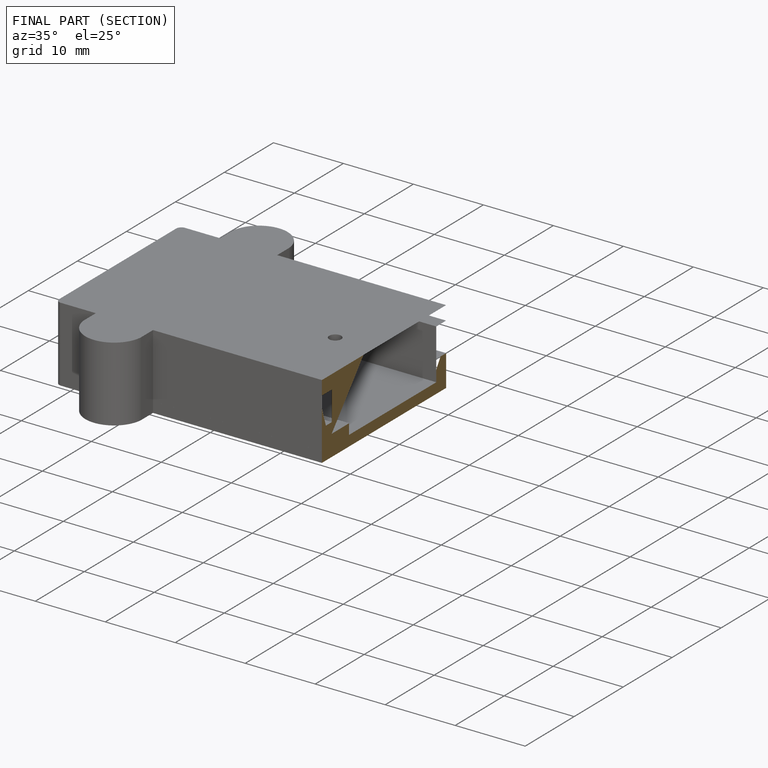
[diagram: finished part — half-section view (interior)]
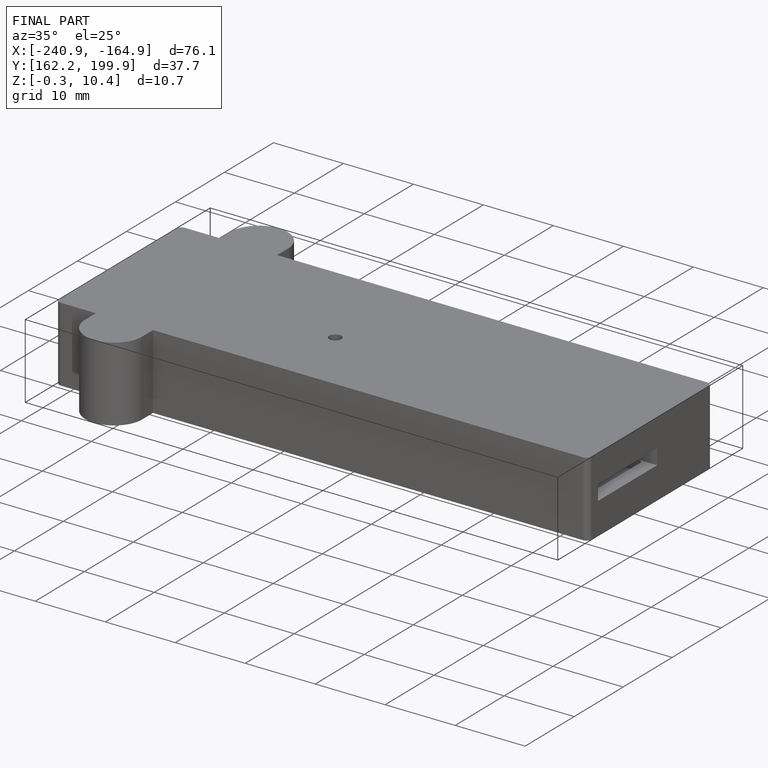
[diagram: finished part — iso view with bounding-box wireframe]
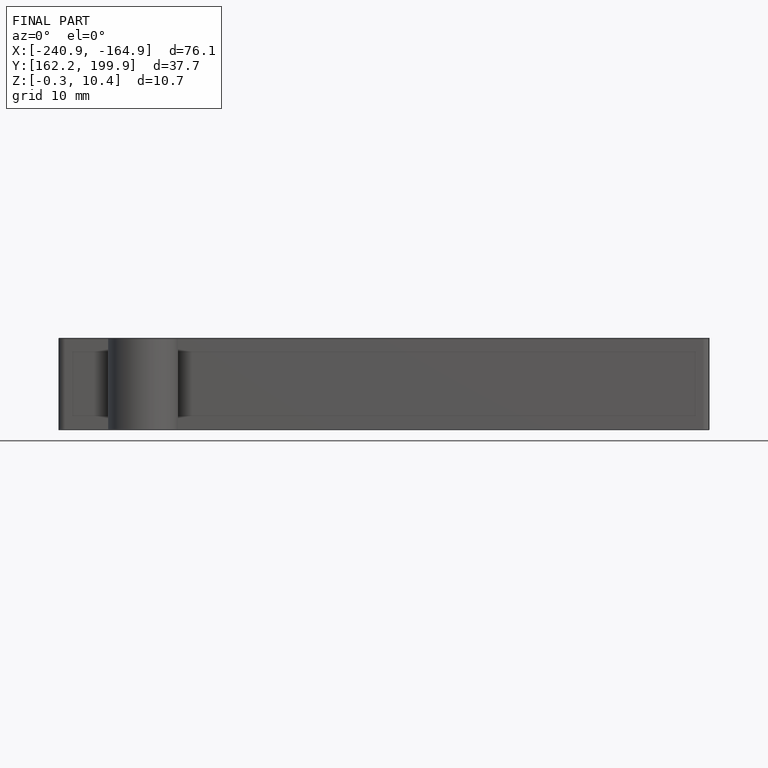
[diagram: finished part — front view with bounding-box wireframe]
